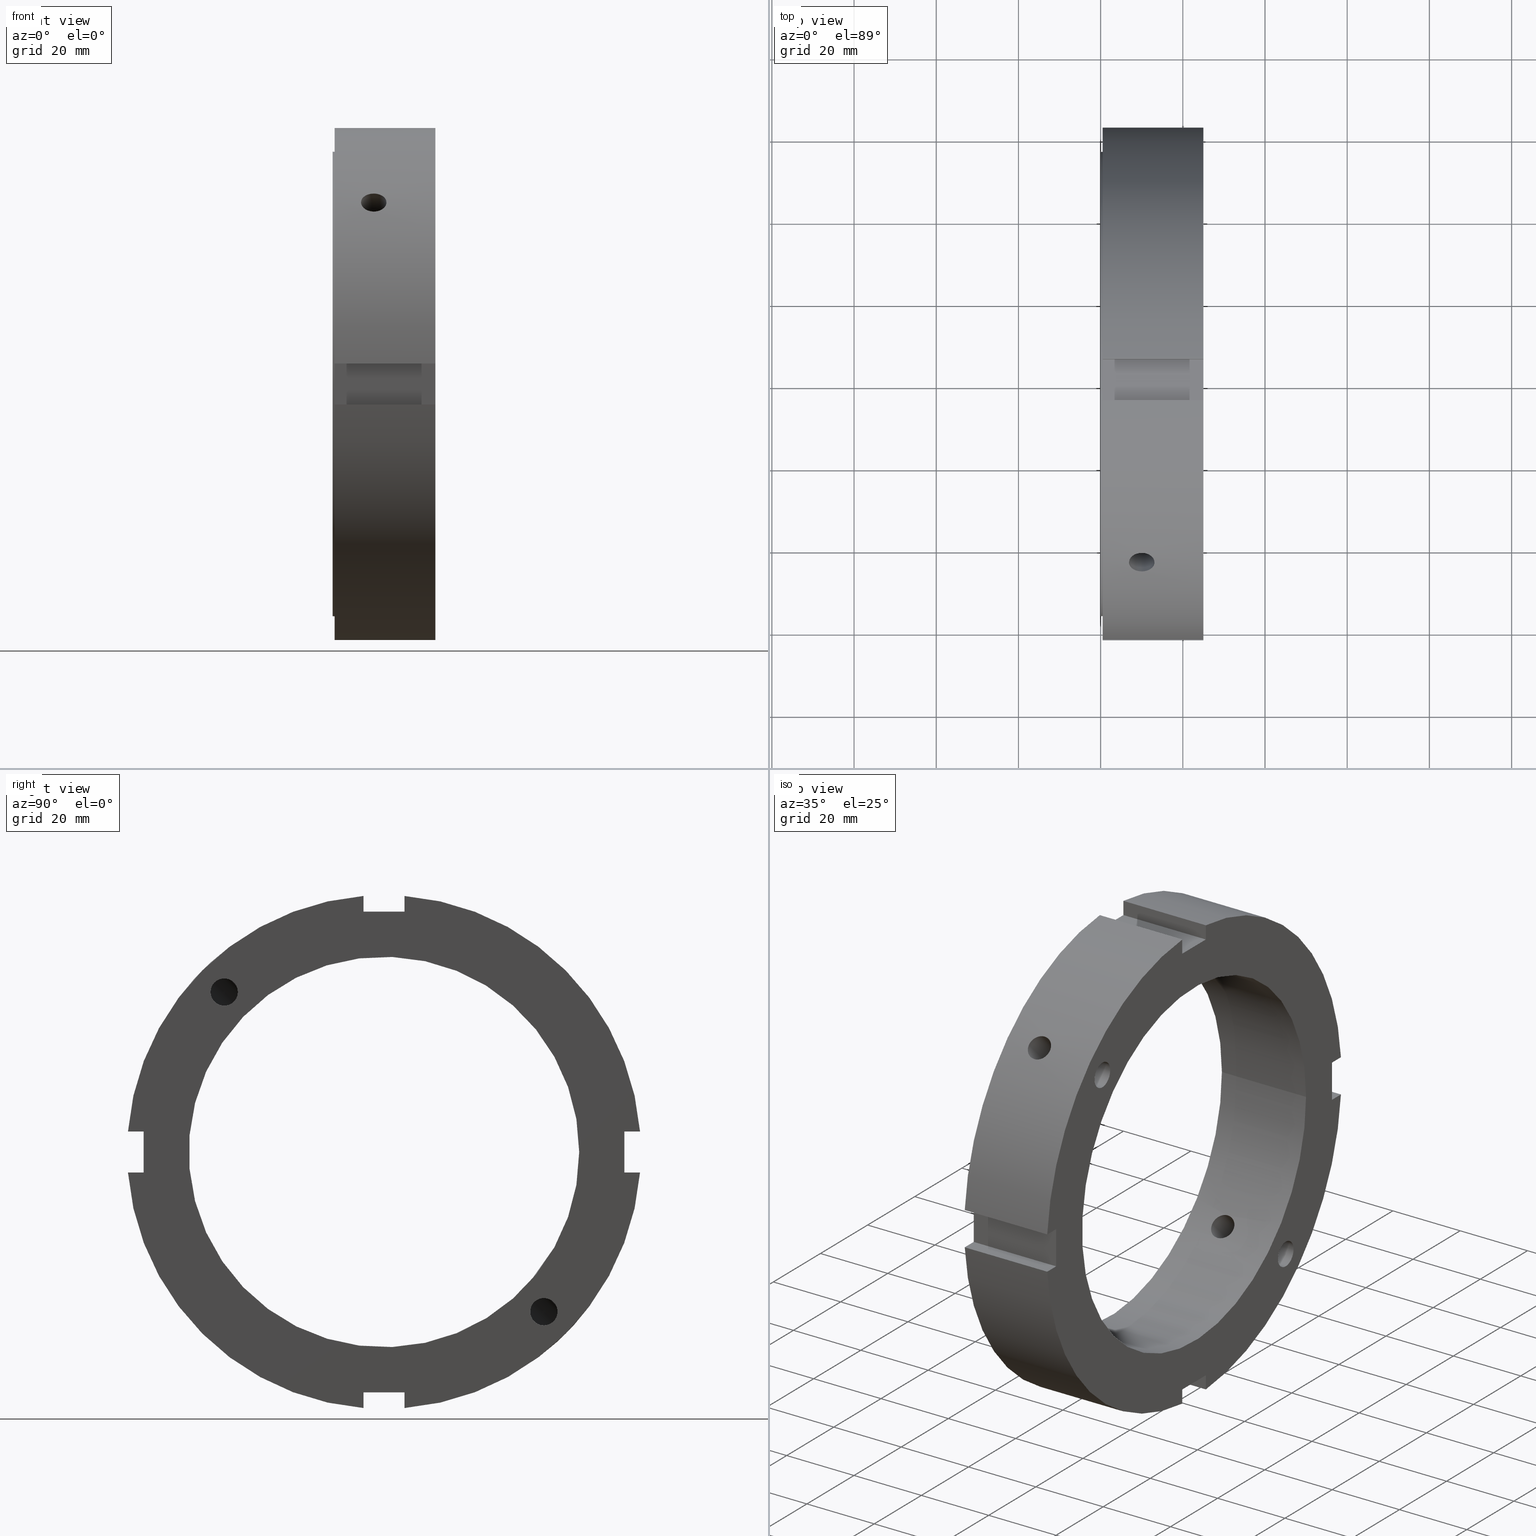
[diagram: canonical four-view strip — front | top / right | iso, engineering-drawing reading convention]
A machine part, canonical four-view strip (front | top / right | iso — engineering-drawing reading convention). The complete STEP part file that produces these views, byte-faithful:
ISO-10303-21;
HEADER;
/****************************************************************
 * Generated by software with PDElib inside                    *
 * PDElib Version v51a, created Wed 11/30/2011                  *
 * ITI Transcendata (http://www.transcendata.com/)              *
 ****************************************************************/
FILE_DESCRIPTION((''),'2;1');
FILE_NAME('C:\\Users\\sugidesign\\Documents\\Fukuda\\3Ddata\\ZMVtype\\FKD ZMV95.stp','2014-02-22T14:40:42',('sugidesign'),(''),'Autodesk Inventor LT ','Autodesk Inventor LT ','');
FILE_SCHEMA(('CONFIG_CONTROL_DESIGN'));
ENDSEC;
DATA;
#5=APPLICATION_CONTEXT('configuration controlled 3D designs of mechanical parts and assemblies');
#6=APPLICATION_PROTOCOL_DEFINITION('International Standard','ap203_configuration_controlled_3d_design_of_mechanical_parts_and_assemblies_mim_lf',2004,#5);
#7=PRODUCT_CONTEXT('',#5,'mechanical');
#8=PRODUCT('FKD ZMV95','FKD ZMV95',$,(#7));
#9=PRODUCT_RELATED_PRODUCT_CATEGORY('part',$,(#8));
#10=PRODUCT_DEFINITION_FORMATION('',$,#8);
#11=PRODUCT_DEFINITION_CONTEXT('part definition',#5,'design');
#12=PRODUCT_DEFINITION('',$,#10,#11);
#18=(NAMED_UNIT(*)PLANE_ANGLE_UNIT()SI_UNIT($,.RADIAN.));
#19=DIMENSIONAL_EXPONENTS(0.0,0.0,0.0,0.0,0.0,0.0,0.0);
#20=PLANE_ANGLE_MEASURE_WITH_UNIT(PLANE_ANGLE_MEASURE(0.0174532925),#18);
#24=(CONVERSION_BASED_UNIT('DEGREE',#20)NAMED_UNIT(#19)PLANE_ANGLE_UNIT());
#28=(NAMED_UNIT(*)SI_UNIT($,.STERADIAN.)SOLID_ANGLE_UNIT());
#32=(LENGTH_UNIT()NAMED_UNIT(*)SI_UNIT(.MILLI.,.METRE.));
#34=UNCERTAINTY_MEASURE_WITH_UNIT(LENGTH_MEASURE(0.01),#32,'DISTANCE_ACCURACY_VALUE','');
#36=(GEOMETRIC_REPRESENTATION_CONTEXT(3)GLOBAL_UNCERTAINTY_ASSIGNED_CONTEXT((#34))GLOBAL_UNIT_ASSIGNED_CONTEXT((#24,#28,#32))REPRESENTATION_CONTEXT('None','None'));
#37=AXIS2_PLACEMENT_3D('',#38,#39,#40);
#38=CARTESIAN_POINT('',(0.0,0.0,0.0));
#39=DIRECTION('',(0.0,0.0,1.0));
#40=DIRECTION('',(1.0,0.0,0.0));
#41=SHAPE_REPRESENTATION('',(#37),#36);
#42=PRODUCT_DEFINITION_SHAPE('','',#12);
#43=SHAPE_DEFINITION_REPRESENTATION(#42,#41);
#49=(NAMED_UNIT(*)PLANE_ANGLE_UNIT()SI_UNIT($,.RADIAN.));
#50=DIMENSIONAL_EXPONENTS(0.0,0.0,0.0,0.0,0.0,0.0,0.0);
#51=PLANE_ANGLE_MEASURE_WITH_UNIT(PLANE_ANGLE_MEASURE(0.0174532925),#49);
#55=(CONVERSION_BASED_UNIT('DEGREE',#51)NAMED_UNIT(#50)PLANE_ANGLE_UNIT());
#59=(NAMED_UNIT(*)SI_UNIT($,.STERADIAN.)SOLID_ANGLE_UNIT());
#63=(LENGTH_UNIT()NAMED_UNIT(*)SI_UNIT(.MILLI.,.METRE.));
#65=UNCERTAINTY_MEASURE_WITH_UNIT(LENGTH_MEASURE(0.000001),#63,'DISTANCE_ACCURACY_VALUE','');
#67=(GEOMETRIC_REPRESENTATION_CONTEXT(3)GLOBAL_UNCERTAINTY_ASSIGNED_CONTEXT((#65))GLOBAL_UNIT_ASSIGNED_CONTEXT((#55,#59,#63))REPRESENTATION_CONTEXT('','3D'));
#68=CARTESIAN_POINT('',(17.499999999999982,-38.890872965260101,38.890872965260129));
#69=DIRECTION('',(-1.0,0.0,0.0));
#70=DIRECTION('',(0.0,-1.0,0.0));
#71=AXIS2_PLACEMENT_3D('',#68,#69,#70);
#72=CYLINDRICAL_SURFACE('',#71,3.3235);
#73=CARTESIAN_POINT('',(24.999999999999982,-42.214372965260111,38.890872965260129));
#74=VERTEX_POINT('',#73);
#75=CARTESIAN_POINT('',(24.999999999999982,-38.890872965260101,38.890872965260129));
#76=DIRECTION('',(-1.0,0.0,0.0));
#77=DIRECTION('',(0.0,-1.0,0.0));
#78=AXIS2_PLACEMENT_3D('',#75,#76,#77);
#79=CIRCLE('',#78,3.3235);
#80=EDGE_CURVE('',#74,#74,#79,.T.);
#81=ORIENTED_EDGE('',*,*,#80,.F.);
#82=EDGE_LOOP('',(#81));
#83=FACE_OUTER_BOUND('',#82,.T.);
#84=CARTESIAN_POINT('',(9.999999999999984,-40.235657786002719,35.851595742646133));
#85=VERTEX_POINT('',#84);
#86=CARTESIAN_POINT('',(9.999999999999981,-35.851595742646076,40.235657786002676));
#87=VERTEX_POINT('',#86);
#88=CARTESIAN_POINT('',(9.999999999999984,-40.235657786002655,35.851595742646097));
#89=CARTESIAN_POINT('',(10.233569825289624,-40.235657786002655,35.851595742646097));
#90=CARTESIAN_POINT('',(10.440966302638051,-40.171007202581315,35.822107512674577));
#91=CARTESIAN_POINT('',(10.836840674384982,-39.980342527220536,35.749357680662669));
#92=CARTESIAN_POINT('',(11.024806661991281,-39.853235569051066,35.706179735944652));
#93=CARTESIAN_POINT('',(11.572531601479472,-39.414585414129725,35.595062928165113));
#94=CARTESIAN_POINT('',(11.911351554404817,-39.047050385549511,35.550109676251736));
#95=CARTESIAN_POINT('',(12.44492654453818,-38.338691728829069,35.596340007120993));
#96=CARTESIAN_POINT('',(12.681418961330902,-37.952779368297811,35.676471298400678));
#97=CARTESIAN_POINT('',(12.927436105658058,-37.39010434633802,35.918494693153875));
#98=CARTESIAN_POINT('',(12.991937069006072,-37.204915016746291,36.018961100741734));
#99=CARTESIAN_POINT('',(13.078237878842893,-36.854662011645026,36.255692342446871));
#100=CARTESIAN_POINT('',(13.099999999999987,-36.689613618648394,36.391993537324851));
#101=CARTESIAN_POINT('',(13.099999999999987,-36.391993537324851,36.689613618648401));
#102=CARTESIAN_POINT('',(13.0782378788429,-36.255692342446871,36.854662011645026));
#103=CARTESIAN_POINT('',(12.991937069006079,-36.018961100741734,37.204915016746284));
#104=CARTESIAN_POINT('',(12.92743610565806,-35.91849469315386,37.39010434633802));
#105=CARTESIAN_POINT('',(12.681418961330911,-35.676471298400656,37.952779368297804));
#106=CARTESIAN_POINT('',(12.444926544538184,-35.596340007120972,38.338691728829062));
#107=CARTESIAN_POINT('',(11.911351554404824,-35.550109676251715,39.047050385549497));
#108=CARTESIAN_POINT('',(11.572531601479479,-35.595062928165085,39.414585414129718));
#109=CARTESIAN_POINT('',(11.024806661991299,-35.706179735944616,39.853235569051051));
#110=CARTESIAN_POINT('',(10.836840674384998,-35.749357680662641,39.980342527220536));
#111=CARTESIAN_POINT('',(10.440966302638063,-35.822107512674549,40.171007202581315));
#112=CARTESIAN_POINT('',(10.233569825289619,-35.851595742646104,40.235657786002733));
#113=CARTESIAN_POINT('',(9.999999999999982,-35.851595742646104,40.235657786002733));
#114=B_SPLINE_CURVE_WITH_KNOTS('',3,(#88,#89,#90,#91,#92,#93,#94,#95,#96,#97,#98,#99,#100,#101,#102,#103,#104,#105,#106,#107,#108,#109,#110,#111,#112,#113),.UNSPECIFIED.,.F.,.U.,(4,2,2,2,2,2,2,2,2,2,2,2,4),(0.0,0.070070947586892,0.140141895173785,0.28028379034757,0.406553296980275,0.469688050296628,0.532822803612981,0.595957556929334,0.659092310245686,0.785361816878391,0.925503712052175,0.995574659639066,1.065645607225958),.UNSPECIFIED.);
#115=EDGE_CURVE('',#85,#87,#114,.T.);
#116=ORIENTED_EDGE('',*,*,#115,.F.);
#117=CARTESIAN_POINT('',(9.999999999999981,-41.930150187874098,37.546088144517505));
#118=VERTEX_POINT('',#117);
#119=CARTESIAN_POINT('',(9.999999999999982,-38.890872965260101,38.890872965260129));
#120=DIRECTION('',(-1.0,0.0,0.0));
#121=DIRECTION('',(0.0,-1.0,0.0));
#122=AXIS2_PLACEMENT_3D('',#119,#120,#121);
#123=CIRCLE('',#122,3.3235);
#124=EDGE_CURVE('',#85,#118,#123,.T.);
#125=ORIENTED_EDGE('',*,*,#124,.T.);
#126=CARTESIAN_POINT('',(9.999999999999984,-37.546088144517554,41.93015018787414));
#127=VERTEX_POINT('',#126);
#128=CARTESIAN_POINT('',(9.999999999999984,-37.546088144517491,41.930150187874126));
#129=CARTESIAN_POINT('',(10.233569825289624,-37.546088144517491,41.930150187874126));
#130=CARTESIAN_POINT('',(10.440966302638067,-37.610738727938923,41.959638417845682));
#131=CARTESIAN_POINT('',(10.836840674384998,-37.801403403299702,42.03238824985759));
#132=CARTESIAN_POINT('',(11.024806661991299,-37.928510361469179,42.075566194575615));
#133=CARTESIAN_POINT('',(11.572531601479481,-38.36716051639052,42.186683002355146));
#134=CARTESIAN_POINT('',(11.911351554404824,-38.734695544970734,42.231636254268523));
#135=CARTESIAN_POINT('',(12.444926544538184,-39.443054201691162,42.185405923399244));
#136=CARTESIAN_POINT('',(12.681418961330902,-39.828966562222433,42.105274632119567));
#137=CARTESIAN_POINT('',(12.927436105658058,-40.39164158418221,41.863251237366363));
#138=CARTESIAN_POINT('',(12.991937069006079,-40.576830913773932,41.762784829778504));
#139=CARTESIAN_POINT('',(13.0782378788429,-40.927083918875198,41.52605358807336));
#140=CARTESIAN_POINT('',(13.099999999999987,-41.092132311871829,41.389752393195387));
#141=CARTESIAN_POINT('',(13.099999999999987,-41.38975239319538,41.092132311871829));
#142=CARTESIAN_POINT('',(13.0782378788429,-41.526053588073353,40.927083918875205));
#143=CARTESIAN_POINT('',(12.991937069006079,-41.762784829778496,40.576830913773946));
#144=CARTESIAN_POINT('',(12.92743610565806,-41.863251237366363,40.39164158418221));
#145=CARTESIAN_POINT('',(12.681418961330904,-42.10527463211956,39.828966562222419));
#146=CARTESIAN_POINT('',(12.444926544538182,-42.185405923399244,39.443054201691155));
#147=CARTESIAN_POINT('',(11.911351554404813,-42.231636254268501,38.73469554497072));
#148=CARTESIAN_POINT('',(11.572531601479488,-42.18668300235511,38.367160516390499));
#149=CARTESIAN_POINT('',(11.024806661991304,-42.075566194575572,37.928510361469151));
#150=CARTESIAN_POINT('',(10.836840674384984,-42.032388249857561,37.801403403299702));
#151=CARTESIAN_POINT('',(10.440966302638049,-41.959638417845653,37.610738727938923));
#152=CARTESIAN_POINT('',(10.233569825289624,-41.930150187874133,37.546088144517576));
#153=CARTESIAN_POINT('',(9.999999999999981,-41.930150187874133,37.546088144517576));
#154=B_SPLINE_CURVE_WITH_KNOTS('',3,(#128,#129,#130,#131,#132,#133,#134,#135,#136,#137,#138,#139,#140,#141,#142,#143,#144,#145,#146,#147,#148,#149,#150,#151,#152,#153),.UNSPECIFIED.,.F.,.U.,(4,2,2,2,2,2,2,2,2,2,2,2,4),(-1.065645607225958,-0.995574659639066,-0.925503712052174,-0.785361816878391,-0.659092310245686,-0.595957556929334,-0.532822803612981,-0.469688050296628,-0.406553296980275,-0.280283790347569,-0.140141895173785,-0.070070947586892,0.0),.UNSPECIFIED.);
#155=EDGE_CURVE('',#127,#118,#154,.T.);
#156=ORIENTED_EDGE('',*,*,#155,.F.);
#157=CARTESIAN_POINT('',(9.999999999999982,-38.890872965260101,38.890872965260129));
#158=DIRECTION('',(-1.0,0.0,0.0));
#159=DIRECTION('',(0.0,-1.0,0.0));
#160=AXIS2_PLACEMENT_3D('',#157,#158,#159);
#161=CIRCLE('',#160,3.3235);
#162=EDGE_CURVE('',#127,#87,#161,.T.);
#163=ORIENTED_EDGE('',*,*,#162,.T.);
#164=EDGE_LOOP('',(#116,#125,#156,#163));
#165=FACE_BOUND('',#164,.T.);
#166=ADVANCED_FACE('',(#83,#165),#72,.F.);
#167=CARTESIAN_POINT('',(9.001519866330934,-38.890872965260101,38.890872965260129));
#168=DIRECTION('',(1.0,0.0,0.0));
#169=DIRECTION('',(0.0,-1.0,0.0));
#170=AXIS2_PLACEMENT_3D('',#167,#168,#169);
#171=CONICAL_SURFACE('',#170,1.66175,59.000000000000007);
#172=CARTESIAN_POINT('',(9.999999999999968,-41.930150187874077,37.546088144517526));
#173=CARTESIAN_POINT('',(9.912387462444665,-41.644161684117478,37.260099640760927));
#174=CARTESIAN_POINT('',(9.863911961712324,-41.356882247391582,36.977046623573024));
#175=CARTESIAN_POINT('',(9.863911961712322,-41.080790777169398,36.70095515335084));
#176=CARTESIAN_POINT('',(9.863911961712322,-40.808945026208278,36.429109402389713));
#177=CARTESIAN_POINT('',(9.911968600355376,-40.523013556882688,36.138951513526138));
#178=CARTESIAN_POINT('',(9.999999999999968,-40.235657786002704,35.851595742646147));
#179=B_SPLINE_CURVE_WITH_KNOTS('',3,(#172,#173,#174,#175,#176,#177,#178),.UNSPECIFIED.,.F.,.U.,(4,3,4),(-0.117135690493122,0.0,0.115334384364818),.UNSPECIFIED.);
#180=EDGE_CURVE('',#118,#85,#179,.T.);
#181=ORIENTED_EDGE('',*,*,#180,.F.);
#182=ORIENTED_EDGE('',*,*,#124,.F.);
#183=EDGE_LOOP('',(#181,#182));
#184=FACE_OUTER_BOUND('',#183,.T.);
#185=ADVANCED_FACE('',(#184),#171,.F.);
#186=CARTESIAN_POINT('',(9.001519866330934,-38.890872965260101,38.890872965260129));
#187=DIRECTION('',(1.0,0.0,0.0));
#188=DIRECTION('',(0.0,-1.0,0.0));
#189=AXIS2_PLACEMENT_3D('',#186,#187,#188);
#190=CONICAL_SURFACE('',#189,1.66175,59.000000000000007);
#191=CARTESIAN_POINT('',(9.999999999999996,-35.851595742646055,40.23565778600269));
#192=CARTESIAN_POINT('',(9.911968600355397,-36.138951513526052,40.523013556882688));
#193=CARTESIAN_POINT('',(9.863911961712317,-36.429109402389678,40.808945026208264));
#194=CARTESIAN_POINT('',(9.863911961712313,-36.977046623573024,41.35688224739161));
#195=CARTESIAN_POINT('',(9.912387462444682,-37.260099640760906,41.644161684117542));
#196=CARTESIAN_POINT('',(9.999999999999996,-37.546088144517526,41.930150187874162));
#197=B_SPLINE_CURVE_WITH_KNOTS('',3,(#191,#192,#193,#194,#195,#196),.UNSPECIFIED.,.F.,.U.,(4,2,4),(1.843478900417881,1.958813284782705,2.075948975275833),.UNSPECIFIED.);
#198=EDGE_CURVE('',#87,#127,#197,.T.);
#199=ORIENTED_EDGE('',*,*,#198,.F.);
#200=ORIENTED_EDGE('',*,*,#162,.F.);
#201=EDGE_LOOP('',(#199,#200));
#202=FACE_OUTER_BOUND('',#201,.T.);
#203=ADVANCED_FACE('',(#202),#190,.F.);
#204=CARTESIAN_POINT('',(9.999999999999986,-125.84712948653218,125.84712948653222));
#205=DIRECTION('',(0.0,-0.707106781186547,0.707106781186548));
#206=DIRECTION('',(1.0,0.0,0.0));
#207=AXIS2_PLACEMENT_3D('',#204,#205,#206);
#208=CYLINDRICAL_SURFACE('',#207,3.100000000000001);
#209=CARTESIAN_POINT('',(9.999999999999986,-46.331809000277147,41.947746956920547));
#210=VERTEX_POINT('',#209);
#211=CARTESIAN_POINT('',(9.999999999999988,-46.331809000277119,41.947746956920568));
#212=CARTESIAN_POINT('',(9.610688527920278,-46.331809000277119,41.947746956920568));
#213=CARTESIAN_POINT('',(9.1954712210817,-46.279624275112916,42.005612180828081));
#214=CARTESIAN_POINT('',(8.431714183417716,-46.066167871219463,42.23959345644473));
#215=CARTESIAN_POINT('',(8.083169039511555,-45.90475094201949,42.41555928311891));
#216=CARTESIAN_POINT('',(7.532768973426228,-45.52921764756482,42.818409226853156));
#217=CARTESIAN_POINT('',(7.294203296904847,-45.290029537403164,43.072138422683125));
#218=CARTESIAN_POINT('',(6.977817042735632,-44.760225204025431,43.62244976483769));
#219=CARTESIAN_POINT('',(6.899999999999988,-44.469458549748751,43.918889098569679));
#220=CARTESIAN_POINT('',(6.899999999999984,-43.918889098569657,44.469458549748779));
#221=CARTESIAN_POINT('',(6.977817042735621,-43.622449764837654,44.760225204025446));
#222=CARTESIAN_POINT('',(7.294203296904821,-43.072138422683096,45.290029537403171));
#223=CARTESIAN_POINT('',(7.53276897342623,-42.818409226853134,45.529217647564835));
#224=CARTESIAN_POINT('',(8.083169039511551,-42.415559283118895,45.904750942019504));
#225=CARTESIAN_POINT('',(8.431714183417702,-42.239593456444702,46.066167871219491));
#226=CARTESIAN_POINT('',(9.195471221081691,-42.005612180828038,46.279624275112937));
#227=CARTESIAN_POINT('',(9.610688527920274,-41.947746956920533,46.331809000277168));
#228=CARTESIAN_POINT('',(10.389311472079701,-41.947746956920533,46.331809000277168));
#229=CARTESIAN_POINT('',(10.80452877891828,-42.005612180828038,46.279624275112937));
#230=CARTESIAN_POINT('',(11.568285816582272,-42.239593456444702,46.066167871219491));
#231=CARTESIAN_POINT('',(11.916830960488426,-42.415559283118895,45.904750942019504));
#232=CARTESIAN_POINT('',(12.467231026573744,-42.818409226853134,45.529217647564835));
#233=CARTESIAN_POINT('',(12.705796703095151,-43.072138422683096,45.290029537403171));
#234=CARTESIAN_POINT('',(13.022182957264352,-43.622449764837654,44.760225204025446));
#235=CARTESIAN_POINT('',(13.099999999999987,-43.918889098569657,44.469458549748779));
#236=CARTESIAN_POINT('',(13.099999999999985,-44.469458549748744,43.918889098569679));
#237=CARTESIAN_POINT('',(13.02218295726435,-44.76022520402541,43.62244976483769));
#238=CARTESIAN_POINT('',(12.705796703095134,-45.290029537403157,43.072138422683118));
#239=CARTESIAN_POINT('',(12.467231026573744,-45.52921764756482,42.818409226853156));
#240=CARTESIAN_POINT('',(11.916830960488419,-45.90475094201949,42.41555928311891));
#241=CARTESIAN_POINT('',(11.568285816582257,-46.066167871219463,42.239593456444723));
#242=CARTESIAN_POINT('',(10.80452877891827,-46.279624275112916,42.005612180828074));
#243=CARTESIAN_POINT('',(10.389311472079694,-46.331809000277133,41.947746956920568));
#244=CARTESIAN_POINT('',(9.999999999999984,-46.331809000277133,41.947746956920568));
#245=B_SPLINE_CURVE_WITH_KNOTS('',3,(#211,#212,#213,#214,#215,#216,#217,#218,#219,#220,#221,#222,#223,#224,#225,#226,#227,#228,#229,#230,#231,#232,#233,#234,#235,#236,#237,#238,#239,#240,#241,#242,#243,#244),.UNSPECIFIED.,.T.,.U.,(4,2,2,2,2,2,2,2,2,2,2,2,2,2,2,2,4),(0.0,0.116793441623913,0.233586883247826,0.350380300980696,0.467173718713565,0.583967136446433,0.700760554179302,0.817553995803216,0.93434743742713,1.051140879051044,1.167934320674958,1.284727738407826,1.401521156140695,1.518314573873564,1.635107991606433,1.751901433230346,1.86869487485426),.UNSPECIFIED.);
#246=EDGE_CURVE('',#210,#210,#245,.T.);
#247=ORIENTED_EDGE('',*,*,#246,.F.);
#248=EDGE_LOOP('',(#247));
#249=FACE_OUTER_BOUND('',#248,.T.);
#250=ORIENTED_EDGE('',*,*,#180,.T.);
#251=ORIENTED_EDGE('',*,*,#115,.T.);
#252=ORIENTED_EDGE('',*,*,#198,.T.);
#253=ORIENTED_EDGE('',*,*,#155,.T.);
#254=EDGE_LOOP('',(#250,#251,#252,#253));
#255=FACE_BOUND('',#254,.T.);
#256=CARTESIAN_POINT('',(9.999999999999986,-35.707997366093899,31.32393532273732));
#257=VERTEX_POINT('',#256);
#258=CARTESIAN_POINT('',(9.999999999999988,-35.707997366093885,31.323935322737334));
#259=CARTESIAN_POINT('',(10.3893617571871,-35.707997366093885,31.323935322737334));
#260=CARTESIAN_POINT('',(10.804600658684809,-35.656700154917154,31.382715828295282));
#261=CARTESIAN_POINT('',(11.568343810667274,-35.446485138978545,31.619959043982444));
#262=CARTESIAN_POINT('',(11.916857461507034,-35.287376493856812,31.798222313056183));
#263=CARTESIAN_POINT('',(12.46720441284447,-34.916200275920815,32.205354217712291));
#264=CARTESIAN_POINT('',(12.705762510545654,-34.679332262130067,32.461359042533218));
#265=CARTESIAN_POINT('',(13.022163364152522,-34.152777854461931,33.014900906377683));
#266=CARTESIAN_POINT('',(13.099999999999987,-33.862892276107488,33.312251936614523));
#267=CARTESIAN_POINT('',(13.099999999999987,-33.312251936614487,33.86289227610753));
#268=CARTESIAN_POINT('',(13.022163364152519,-33.01490090637764,34.152777854461981));
#269=CARTESIAN_POINT('',(12.70576251054565,-32.461359042533168,34.679332262130117));
#270=CARTESIAN_POINT('',(12.46720441284447,-32.205354217712248,34.916200275920858));
#271=CARTESIAN_POINT('',(11.916857461507034,-31.798222313056144,35.28737649385684));
#272=CARTESIAN_POINT('',(11.568343810667274,-31.619959043982405,35.446485138978581));
#273=CARTESIAN_POINT('',(10.80460065868481,-31.382715828295243,35.656700154917189));
#274=CARTESIAN_POINT('',(10.3893617571871,-31.323935322737292,35.707997366093934));
#275=CARTESIAN_POINT('',(9.610638242812877,-31.323935322737292,35.707997366093934));
#276=CARTESIAN_POINT('',(9.195399341315165,-31.382715828295243,35.656700154917189));
#277=CARTESIAN_POINT('',(8.431656189332701,-31.619959043982405,35.446485138978581));
#278=CARTESIAN_POINT('',(8.083142538492943,-31.798222313056144,35.28737649385684));
#279=CARTESIAN_POINT('',(7.532795587155505,-32.205354217712248,34.916200275920858));
#280=CARTESIAN_POINT('',(7.294237489454321,-32.461359042533168,34.67933226213011));
#281=CARTESIAN_POINT('',(6.977836635847455,-33.01490090637764,34.152777854461974));
#282=CARTESIAN_POINT('',(6.899999999999986,-33.31225193661448,33.862892276107523));
#283=CARTESIAN_POINT('',(6.899999999999986,-33.862892276107488,33.312251936614523));
#284=CARTESIAN_POINT('',(6.977836635847455,-34.152777854461931,33.01490090637769));
#285=CARTESIAN_POINT('',(7.294237489454321,-34.679332262130067,32.461359042533218));
#286=CARTESIAN_POINT('',(7.532795587155503,-34.916200275920815,32.205354217712291));
#287=CARTESIAN_POINT('',(8.083142538492941,-35.287376493856812,31.798222313056183));
#288=CARTESIAN_POINT('',(8.431656189332699,-35.446485138978545,31.619959043982444));
#289=CARTESIAN_POINT('',(9.195399341315163,-35.656700154917154,31.382715828295282));
#290=CARTESIAN_POINT('',(9.610638242812877,-35.707997366093892,31.323935322737331));
#291=CARTESIAN_POINT('',(9.999999999999988,-35.707997366093892,31.323935322737331));
#292=B_SPLINE_CURVE_WITH_KNOTS('',3,(#258,#259,#260,#261,#262,#263,#264,#265,#266,#267,#268,#269,#270,#271,#272,#273,#274,#275,#276,#277,#278,#279,#280,#281,#282,#283,#284,#285,#286,#287,#288,#289,#290,#291),.UNSPECIFIED.,.T.,.U.,(4,2,2,2,2,2,2,2,2,2,2,2,2,2,2,2,4),(0.0,0.116808527156133,0.233617054312267,0.350425509727376,0.467233965142486,0.584042420557596,0.700850875972706,0.817659403128839,0.934467930284972,1.051276457441105,1.168084984597239,1.284893440012348,1.401701895427458,1.518510350842568,1.635318806257678,1.752127333413811,1.868935860569944),.UNSPECIFIED.);
#293=EDGE_CURVE('',#257,#257,#292,.T.);
#294=ORIENTED_EDGE('',*,*,#293,.F.);
#295=EDGE_LOOP('',(#294));
#296=FACE_BOUND('',#295,.T.);
#297=ADVANCED_FACE('',(#249,#255,#296),#208,.F.);
#298=CARTESIAN_POINT('',(9.001519866330934,38.890872965260115,-38.890872965260115));
#299=DIRECTION('',(1.0,0.0,0.0));
#300=DIRECTION('',(0.0,0.0,-1.0));
#301=AXIS2_PLACEMENT_3D('',#298,#299,#300);
#302=CONICAL_SURFACE('',#301,1.66175,59.000000000000007);
#303=CARTESIAN_POINT('',(9.999999999999984,35.851595742646126,-40.235657786002726));
#304=VERTEX_POINT('',#303);
#305=CARTESIAN_POINT('',(9.999999999999981,37.546088144517498,-41.930150187874105));
#306=VERTEX_POINT('',#305);
#307=CARTESIAN_POINT('',(9.999999999999979,35.851595742646126,-40.235657786002726));
#308=CARTESIAN_POINT('',(9.911968601461378,36.138951509915891,-40.523013553272492));
#309=CARTESIAN_POINT('',(9.863911961712322,36.429109403772763,-40.808945027591335));
#310=CARTESIAN_POINT('',(9.863911961712322,36.700955153350833,-41.080790777169405));
#311=CARTESIAN_POINT('',(9.863911961712324,36.977046623573017,-41.356882247391589));
#312=CARTESIAN_POINT('',(9.912387462444674,37.260099640760906,-41.644161684117492));
#313=CARTESIAN_POINT('',(9.999999999999975,37.546088144517505,-41.930150187874098));
#314=B_SPLINE_CURVE_WITH_KNOTS('',3,(#307,#308,#309,#310,#311,#312,#313),.UNSPECIFIED.,.F.,.U.,(4,3,4),(-0.115334383778036,0.0,0.117135690493122),.UNSPECIFIED.);
#315=EDGE_CURVE('',#304,#306,#314,.T.);
#316=ORIENTED_EDGE('',*,*,#315,.F.);
#317=CARTESIAN_POINT('',(9.999999999999982,38.890872965260115,-38.890872965260115));
#318=DIRECTION('',(1.0,0.0,0.0));
#319=DIRECTION('',(0.0,0.0,-1.0));
#320=AXIS2_PLACEMENT_3D('',#317,#318,#319);
#321=CIRCLE('',#320,3.3235);
#322=EDGE_CURVE('',#304,#306,#321,.T.);
#323=ORIENTED_EDGE('',*,*,#322,.T.);
#324=EDGE_LOOP('',(#316,#323));
#325=FACE_OUTER_BOUND('',#324,.T.);
#326=ADVANCED_FACE('',(#325),#302,.F.);
#327=CARTESIAN_POINT('',(9.001519866330934,38.890872965260115,-38.890872965260115));
#328=DIRECTION('',(1.0,0.0,0.0));
#329=DIRECTION('',(0.0,0.0,-1.0));
#330=AXIS2_PLACEMENT_3D('',#327,#328,#329);
#331=CONICAL_SURFACE('',#330,1.66175,59.000000000000007);
#332=CARTESIAN_POINT('',(9.999999999999984,41.930150187874133,-37.546088144517562));
#333=VERTEX_POINT('',#332);
#334=CARTESIAN_POINT('',(9.999999999999981,40.235657786002662,-35.851595742646083));
#335=VERTEX_POINT('',#334);
#336=CARTESIAN_POINT('',(9.999999999999984,41.93015018787414,-37.546088144517547));
#337=CARTESIAN_POINT('',(9.912387462444672,41.64416168411752,-37.260099640760927));
#338=CARTESIAN_POINT('',(9.863911961712313,41.356882247391596,-36.977046623573031));
#339=CARTESIAN_POINT('',(9.863911961712315,40.808945026208256,-36.429109402389685));
#340=CARTESIAN_POINT('',(9.911968600355383,40.523013556882688,-36.138951513526095));
#341=CARTESIAN_POINT('',(9.999999999999986,40.235657786002676,-35.851595742646083));
#342=B_SPLINE_CURVE_WITH_KNOTS('',3,(#336,#337,#338,#339,#340,#341),.UNSPECIFIED.,.F.,.U.,(4,2,4),(1.864951332313782,1.982087022806911,2.097421407171735),.UNSPECIFIED.);
#343=EDGE_CURVE('',#333,#335,#342,.T.);
#344=ORIENTED_EDGE('',*,*,#343,.F.);
#345=CARTESIAN_POINT('',(9.999999999999982,38.890872965260115,-38.890872965260115));
#346=DIRECTION('',(1.0,0.0,0.0));
#347=DIRECTION('',(0.0,0.0,-1.0));
#348=AXIS2_PLACEMENT_3D('',#345,#346,#347);
#349=CIRCLE('',#348,3.3235);
#350=EDGE_CURVE('',#333,#335,#349,.T.);
#351=ORIENTED_EDGE('',*,*,#350,.T.);
#352=EDGE_LOOP('',(#344,#351));
#353=FACE_OUTER_BOUND('',#352,.T.);
#354=ADVANCED_FACE('',(#353),#331,.F.);
#355=CARTESIAN_POINT('',(17.499999999999982,38.890872965260115,-38.890872965260115));
#356=DIRECTION('',(1.0,0.0,0.0));
#357=DIRECTION('',(0.0,0.0,-1.0));
#358=AXIS2_PLACEMENT_3D('',#355,#356,#357);
#359=CYLINDRICAL_SURFACE('',#358,3.3235);
#360=CARTESIAN_POINT('',(9.999999999999986,37.546088144517512,-41.930150187874126));
#361=CARTESIAN_POINT('',(10.233569825289624,37.546088144517512,-41.930150187874126));
#362=CARTESIAN_POINT('',(10.440966302638044,37.610738727938916,-41.959638417845667));
#363=CARTESIAN_POINT('',(10.83684067438498,37.801403403299695,-42.032388249857568));
#364=CARTESIAN_POINT('',(11.024806661991299,37.928510361469144,-42.075566194575586));
#365=CARTESIAN_POINT('',(11.572531601479486,38.367160516390484,-42.186683002355124));
#366=CARTESIAN_POINT('',(11.911351554404819,38.734695544970698,-42.231636254268508));
#367=CARTESIAN_POINT('',(12.444926544538184,39.443054201691133,-42.185405923399259));
#368=CARTESIAN_POINT('',(12.681418961330888,39.828966562222384,-42.10527463211956));
#369=CARTESIAN_POINT('',(12.92743610565805,40.391641584182167,-41.863251237366356));
#370=CARTESIAN_POINT('',(12.991937069006067,40.576830913773918,-41.762784829778504));
#371=CARTESIAN_POINT('',(13.078237878842893,40.927083918875191,-41.52605358807336));
#372=CARTESIAN_POINT('',(13.099999999999987,41.092132311871822,-41.389752393195387));
#373=CARTESIAN_POINT('',(13.099999999999987,41.38975239319538,-41.092132311871836));
#374=CARTESIAN_POINT('',(13.0782378788429,41.526053588073353,-40.927083918875205));
#375=CARTESIAN_POINT('',(12.991937069006079,41.762784829778496,-40.576830913773946));
#376=CARTESIAN_POINT('',(12.927436105658058,41.863251237366356,-40.391641584182224));
#377=CARTESIAN_POINT('',(12.681418961330902,42.10527463211956,-39.82896656222244));
#378=CARTESIAN_POINT('',(12.444926544538184,42.185405923399237,-39.443054201691169));
#379=CARTESIAN_POINT('',(11.911351554404824,42.231636254268508,-38.734695544970748));
#380=CARTESIAN_POINT('',(11.572531601479481,42.186683002355139,-38.367160516390527));
#381=CARTESIAN_POINT('',(11.024806661991299,42.0755661945756,-37.928510361469193));
#382=CARTESIAN_POINT('',(10.836840674385002,42.032388249857576,-37.801403403299709));
#383=CARTESIAN_POINT('',(10.440966302638069,41.959638417845674,-37.61073872793893));
#384=CARTESIAN_POINT('',(10.233569825289628,41.93015018787414,-37.546088144517547));
#385=CARTESIAN_POINT('',(9.999999999999988,41.93015018787414,-37.546088144517547));
#386=B_SPLINE_CURVE_WITH_KNOTS('',3,(#360,#361,#362,#363,#364,#365,#366,#367,#368,#369,#370,#371,#372,#373,#374,#375,#376,#377,#378,#379,#380,#381,#382,#383,#384,#385),.UNSPECIFIED.,.F.,.U.,(4,2,2,2,2,2,2,2,2,2,2,2,4),(0.0,0.070070947586892,0.140141895173784,0.280283790347568,0.406553296980274,0.469688050296628,0.532822803612981,0.595957556929334,0.659092310245686,0.785361816878391,0.925503712052174,0.995574659639066,1.065645607225958),.UNSPECIFIED.);
#387=EDGE_CURVE('',#306,#333,#386,.T.);
#388=ORIENTED_EDGE('',*,*,#387,.F.);
#389=ORIENTED_EDGE('',*,*,#322,.F.);
#390=CARTESIAN_POINT('',(9.999999999999986,40.235657786002704,-35.851595742646097));
#391=CARTESIAN_POINT('',(10.233569825289626,40.235657786002704,-35.851595742646097));
#392=CARTESIAN_POINT('',(10.440966302638053,40.171007202581279,-35.822107512674549));
#393=CARTESIAN_POINT('',(10.836840674384987,39.9803425272205,-35.749357680662641));
#394=CARTESIAN_POINT('',(11.024806661991299,39.853235569051044,-35.706179735944623));
#395=CARTESIAN_POINT('',(11.572531601479479,39.414585414129711,-35.595062928165092));
#396=CARTESIAN_POINT('',(11.911351554404824,39.047050385549483,-35.550109676251722));
#397=CARTESIAN_POINT('',(12.444926544538184,38.338691728829055,-35.596340007120986));
#398=CARTESIAN_POINT('',(12.681418961330911,37.952779368297797,-35.676471298400671));
#399=CARTESIAN_POINT('',(12.92743610565806,37.390104346338013,-35.918494693153875));
#400=CARTESIAN_POINT('',(12.991937069006079,37.204915016746277,-36.018961100741748));
#401=CARTESIAN_POINT('',(13.0782378788429,36.854662011645011,-36.255692342446878));
#402=CARTESIAN_POINT('',(13.099999999999987,36.689613618648394,-36.391993537324858));
#403=CARTESIAN_POINT('',(13.099999999999987,36.391993537324844,-36.689613618648409));
#404=CARTESIAN_POINT('',(13.078237878842895,36.255692342446864,-36.854662011645033));
#405=CARTESIAN_POINT('',(12.99193706900607,36.018961100741727,-37.204915016746305));
#406=CARTESIAN_POINT('',(12.927436105658048,35.91849469315386,-37.390104346338042));
#407=CARTESIAN_POINT('',(12.681418961330888,35.676471298400656,-37.952779368297833));
#408=CARTESIAN_POINT('',(12.444926544538184,35.596340007120979,-38.338691728829112));
#409=CARTESIAN_POINT('',(11.911351554404819,35.550109676251729,-39.047050385549547));
#410=CARTESIAN_POINT('',(11.572531601479451,35.595062928165106,-39.414585414129746));
#411=CARTESIAN_POINT('',(11.024806661991269,35.706179735944644,-39.85323556905108));
#412=CARTESIAN_POINT('',(10.836840674384957,35.749357680662655,-39.980342527220543));
#413=CARTESIAN_POINT('',(10.440966302638028,35.822107512674563,-40.171007202581315));
#414=CARTESIAN_POINT('',(10.233569825289624,35.851595742646111,-40.235657786002719));
#415=CARTESIAN_POINT('',(9.999999999999986,35.851595742646111,-40.235657786002719));
#416=B_SPLINE_CURVE_WITH_KNOTS('',3,(#390,#391,#392,#393,#394,#395,#396,#397,#398,#399,#400,#401,#402,#403,#404,#405,#406,#407,#408,#409,#410,#411,#412,#413,#414,#415),.UNSPECIFIED.,.F.,.U.,(4,2,2,2,2,2,2,2,2,2,2,2,4),(-1.065645607225958,-0.995574659639066,-0.925503712052175,-0.785361816878391,-0.659092310245686,-0.595957556929334,-0.532822803612981,-0.469688050296628,-0.406553296980274,-0.280283790347567,-0.140141895173784,-0.070070947586892,0.0),.UNSPECIFIED.);
#417=EDGE_CURVE('',#335,#304,#416,.T.);
#418=ORIENTED_EDGE('',*,*,#417,.F.);
#419=ORIENTED_EDGE('',*,*,#350,.F.);
#420=EDGE_LOOP('',(#388,#389,#418,#419));
#421=FACE_OUTER_BOUND('',#420,.T.);
#422=CARTESIAN_POINT('',(24.999999999999982,38.890872965260115,-42.214372965260118));
#423=VERTEX_POINT('',#422);
#424=CARTESIAN_POINT('',(24.999999999999982,38.890872965260115,-38.890872965260115));
#425=DIRECTION('',(-1.0,0.0,0.0));
#426=DIRECTION('',(0.0,0.0,-1.0));
#427=AXIS2_PLACEMENT_3D('',#424,#425,#426);
#428=CIRCLE('',#427,3.3235);
#429=EDGE_CURVE('',#423,#423,#428,.T.);
#430=ORIENTED_EDGE('',*,*,#429,.F.);
#431=EDGE_LOOP('',(#430));
#432=FACE_BOUND('',#431,.T.);
#433=ADVANCED_FACE('',(#421,#432),#359,.F.);
#434=CARTESIAN_POINT('',(9.999999999999986,125.8471294865322,-125.84712948653221));
#435=DIRECTION('',(0.0,-0.707106781186547,0.707106781186548));
#436=DIRECTION('',(1.0,0.0,0.0));
#437=AXIS2_PLACEMENT_3D('',#434,#435,#436);
#438=CYLINDRICAL_SURFACE('',#437,3.100000000000001);
#439=CARTESIAN_POINT('',(9.999999999999986,41.94774695692054,-46.331809000277161));
#440=VERTEX_POINT('',#439);
#441=CARTESIAN_POINT('',(9.999999999999986,41.947746956920547,-46.331809000277147));
#442=CARTESIAN_POINT('',(10.389311472079699,41.947746956920547,-46.331809000277147));
#443=CARTESIAN_POINT('',(10.804528778918279,42.005612180828052,-46.279624275112923));
#444=CARTESIAN_POINT('',(11.568285816582263,42.239593456444702,-46.06616787121947));
#445=CARTESIAN_POINT('',(11.916830960488426,42.415559283118895,-45.904750942019504));
#446=CARTESIAN_POINT('',(12.467231026573746,42.818409226853156,-45.529217647564835));
#447=CARTESIAN_POINT('',(12.70579670309515,43.072138422683111,-45.290029537403164));
#448=CARTESIAN_POINT('',(13.022182957264352,43.622449764837668,-44.760225204025431));
#449=CARTESIAN_POINT('',(13.099999999999987,43.918889098569672,-44.469458549748765));
#450=CARTESIAN_POINT('',(13.099999999999987,44.469458549748772,-43.918889098569664));
#451=CARTESIAN_POINT('',(13.022182957264343,44.760225204025438,-43.622449764837668));
#452=CARTESIAN_POINT('',(12.705796703095125,45.290029537403178,-43.072138422683111));
#453=CARTESIAN_POINT('',(12.467231026573744,45.529217647564835,-42.818409226853149));
#454=CARTESIAN_POINT('',(11.916830960488415,45.904750942019497,-42.415559283118903));
#455=CARTESIAN_POINT('',(11.568285816582256,46.066167871219477,-42.239593456444709));
#456=CARTESIAN_POINT('',(10.80452877891827,46.27962427511293,-42.005612180828066));
#457=CARTESIAN_POINT('',(10.389311472079699,46.331809000277161,-41.94774695692054));
#458=CARTESIAN_POINT('',(9.610688527920274,46.331809000277161,-41.94774695692054));
#459=CARTESIAN_POINT('',(9.195471221081702,46.27962427511293,-42.005612180828066));
#460=CARTESIAN_POINT('',(8.431714183417716,46.066167871219477,-42.239593456444709));
#461=CARTESIAN_POINT('',(8.083169039511557,45.904750942019497,-42.415559283118903));
#462=CARTESIAN_POINT('',(7.532768973426229,45.529217647564835,-42.818409226853149));
#463=CARTESIAN_POINT('',(7.294203296904847,45.290029537403178,-43.072138422683111));
#464=CARTESIAN_POINT('',(6.97781704273563,44.760225204025438,-43.622449764837668));
#465=CARTESIAN_POINT('',(6.899999999999988,44.469458549748772,-43.918889098569664));
#466=CARTESIAN_POINT('',(6.899999999999984,43.918889098569672,-44.469458549748765));
#467=CARTESIAN_POINT('',(6.977817042735622,43.622449764837668,-44.760225204025431));
#468=CARTESIAN_POINT('',(7.294203296904823,43.072138422683111,-45.290029537403164));
#469=CARTESIAN_POINT('',(7.532768973426228,42.818409226853156,-45.529217647564835));
#470=CARTESIAN_POINT('',(8.083169039511549,42.415559283118895,-45.904750942019504));
#471=CARTESIAN_POINT('',(8.431714183417711,42.239593456444702,-46.06616787121947));
#472=CARTESIAN_POINT('',(9.195471221081697,42.005612180828052,-46.279624275112923));
#473=CARTESIAN_POINT('',(9.610688527920278,41.947746956920547,-46.331809000277147));
#474=CARTESIAN_POINT('',(9.999999999999989,41.947746956920547,-46.331809000277147));
#475=B_SPLINE_CURVE_WITH_KNOTS('',3,(#441,#442,#443,#444,#445,#446,#447,#448,#449,#450,#451,#452,#453,#454,#455,#456,#457,#458,#459,#460,#461,#462,#463,#464,#465,#466,#467,#468,#469,#470,#471,#472,#473,#474),.UNSPECIFIED.,.T.,.U.,(4,2,2,2,2,2,2,2,2,2,2,2,2,2,2,2,4),(0.0,0.116793441623914,0.233586883247827,0.350380300980696,0.467173718713565,0.583967136446434,0.700760554179303,0.817553995803216,0.93434743742713,1.051140879051044,1.167934320674957,1.284727738407826,1.401521156140694,1.518314573873564,1.635107991606433,1.751901433230346,1.86869487485426),.UNSPECIFIED.);
#476=EDGE_CURVE('',#440,#440,#475,.T.);
#477=ORIENTED_EDGE('',*,*,#476,.F.);
#478=EDGE_LOOP('',(#477));
#479=FACE_OUTER_BOUND('',#478,.T.);
#480=ORIENTED_EDGE('',*,*,#315,.T.);
#481=ORIENTED_EDGE('',*,*,#387,.T.);
#482=ORIENTED_EDGE('',*,*,#343,.T.);
#483=ORIENTED_EDGE('',*,*,#417,.T.);
#484=EDGE_LOOP('',(#480,#481,#482,#483));
#485=FACE_BOUND('',#484,.T.);
#486=CARTESIAN_POINT('',(9.999999999999986,31.323935322737313,-35.707997366093906));
#487=VERTEX_POINT('',#486);
#488=CARTESIAN_POINT('',(9.999999999999986,31.323935322737309,-35.707997366093906));
#489=CARTESIAN_POINT('',(9.610638242812877,31.323935322737309,-35.707997366093906));
#490=CARTESIAN_POINT('',(9.195399341315165,31.382715828295261,-35.656700154917175));
#491=CARTESIAN_POINT('',(8.431656189332701,31.619959043982423,-35.446485138978559));
#492=CARTESIAN_POINT('',(8.083142538492943,31.798222313056161,-35.287376493856826));
#493=CARTESIAN_POINT('',(7.532795587155505,32.205354217712269,-34.916200275920843));
#494=CARTESIAN_POINT('',(7.294237489454321,32.461359042533189,-34.679332262130089));
#495=CARTESIAN_POINT('',(6.977836635847455,33.014900906377655,-34.152777854461952));
#496=CARTESIAN_POINT('',(6.899999999999986,33.312251936614501,-33.862892276107516));
#497=CARTESIAN_POINT('',(6.899999999999986,33.862892276107502,-33.312251936614501));
#498=CARTESIAN_POINT('',(6.977836635847452,34.152777854461945,-33.014900906377662));
#499=CARTESIAN_POINT('',(7.294237489454321,34.679332262130089,-32.461359042533196));
#500=CARTESIAN_POINT('',(7.532795587155503,34.916200275920836,-32.205354217712269));
#501=CARTESIAN_POINT('',(8.08314253849294,35.287376493856826,-31.798222313056165));
#502=CARTESIAN_POINT('',(8.431656189332699,35.446485138978559,-31.619959043982423));
#503=CARTESIAN_POINT('',(9.195399341315163,35.656700154917168,-31.382715828295261));
#504=CARTESIAN_POINT('',(9.610638242812875,35.707997366093906,-31.323935322737313));
#505=CARTESIAN_POINT('',(10.3893617571871,35.707997366093906,-31.323935322737313));
#506=CARTESIAN_POINT('',(10.804600658684809,35.656700154917168,-31.382715828295261));
#507=CARTESIAN_POINT('',(11.568343810667274,35.446485138978559,-31.619959043982423));
#508=CARTESIAN_POINT('',(11.916857461507034,35.287376493856826,-31.798222313056165));
#509=CARTESIAN_POINT('',(12.46720441284447,34.916200275920836,-32.205354217712269));
#510=CARTESIAN_POINT('',(12.705762510545654,34.679332262130089,-32.461359042533203));
#511=CARTESIAN_POINT('',(13.022163364152522,34.152777854461945,-33.014900906377669));
#512=CARTESIAN_POINT('',(13.099999999999987,33.862892276107502,-33.312251936614501));
#513=CARTESIAN_POINT('',(13.099999999999987,33.312251936614501,-33.862892276107516));
#514=CARTESIAN_POINT('',(13.022163364152522,33.014900906377648,-34.152777854461952));
#515=CARTESIAN_POINT('',(12.705762510545654,32.461359042533182,-34.679332262130089));
#516=CARTESIAN_POINT('',(12.467204412844469,32.205354217712269,-34.916200275920843));
#517=CARTESIAN_POINT('',(11.916857461507032,31.798222313056161,-35.287376493856826));
#518=CARTESIAN_POINT('',(11.568343810667272,31.619959043982423,-35.446485138978559));
#519=CARTESIAN_POINT('',(10.80460065868481,31.382715828295261,-35.656700154917175));
#520=CARTESIAN_POINT('',(10.3893617571871,31.323935322737309,-35.707997366093906));
#521=CARTESIAN_POINT('',(9.999999999999986,31.323935322737309,-35.707997366093906));
#522=B_SPLINE_CURVE_WITH_KNOTS('',3,(#488,#489,#490,#491,#492,#493,#494,#495,#496,#497,#498,#499,#500,#501,#502,#503,#504,#505,#506,#507,#508,#509,#510,#511,#512,#513,#514,#515,#516,#517,#518,#519,#520,#521),.UNSPECIFIED.,.T.,.U.,(4,2,2,2,2,2,2,2,2,2,2,2,2,2,2,2,4),(0.0,0.116808527156133,0.233617054312266,0.350425509727376,0.467233965142486,0.584042420557596,0.700850875972705,0.817659403128839,0.934467930284972,1.051276457441105,1.168084984597239,1.284893440012348,1.401701895427458,1.518510350842568,1.635318806257678,1.752127333413811,1.868935860569944),.UNSPECIFIED.);
#523=EDGE_CURVE('',#487,#487,#522,.T.);
#524=ORIENTED_EDGE('',*,*,#523,.F.);
#525=EDGE_LOOP('',(#524));
#526=FACE_BOUND('',#525,.T.);
#527=ADVANCED_FACE('',(#479,#485,#526),#438,.F.);
#528=CARTESIAN_POINT('',(24.999999999999982,-5.000000000000007,-58.5));
#529=DIRECTION('',(0.0,-1.0,0.0));
#530=DIRECTION('',(-1.0,0.0,0.0));
#531=AXIS2_PLACEMENT_3D('',#528,#529,#530);
#532=PLANE('',#531);
#533=CARTESIAN_POINT('',(0.499999999999985,-5.000000000000007,-58.5));
#534=VERTEX_POINT('',#533);
#535=CARTESIAN_POINT('',(0.499999999999985,-5.000000000000008,-62.299678971885555));
#536=VERTEX_POINT('',#535);
#537=CARTESIAN_POINT('',(0.499999999999985,-5.00000000000001,-58.5));
#538=DIRECTION('',(0.0,0.0,-1.0));
#539=VECTOR('',#538,3.799678971885555);
#540=LINE('',#537,#539);
#541=EDGE_CURVE('',#534,#536,#540,.T.);
#542=ORIENTED_EDGE('',*,*,#541,.F.);
#543=CARTESIAN_POINT('',(24.999999999999982,-5.000000000000007,-58.5));
#544=VERTEX_POINT('',#543);
#545=CARTESIAN_POINT('',(24.999999999999982,-5.000000000000007,-58.5));
#546=DIRECTION('',(-1.0,0.0,0.0));
#547=VECTOR('',#546,24.499999999999996);
#548=LINE('',#545,#547);
#549=EDGE_CURVE('',#544,#534,#548,.T.);
#550=ORIENTED_EDGE('',*,*,#549,.F.);
#551=CARTESIAN_POINT('',(24.999999999999982,-5.000000000000008,-62.299678971885555));
#552=VERTEX_POINT('',#551);
#553=CARTESIAN_POINT('',(24.999999999999982,-5.000000000000011,-62.299678971885555));
#554=DIRECTION('',(0.0,0.0,1.0));
#555=VECTOR('',#554,3.799678971885555);
#556=LINE('',#553,#555);
#557=EDGE_CURVE('',#552,#544,#556,.T.);
#558=ORIENTED_EDGE('',*,*,#557,.F.);
#559=CARTESIAN_POINT('',(0.499999999999986,-5.000000000000007,-62.299678971885555));
#560=DIRECTION('',(1.0,0.0,0.0));
#561=VECTOR('',#560,24.499999999999996);
#562=LINE('',#559,#561);
#563=EDGE_CURVE('',#536,#552,#562,.T.);
#564=ORIENTED_EDGE('',*,*,#563,.F.);
#565=EDGE_LOOP('',(#542,#550,#558,#564));
#566=FACE_OUTER_BOUND('',#565,.T.);
#567=ADVANCED_FACE('',(#566),#532,.F.);
#568=CARTESIAN_POINT('',(24.999999999999982,4.999999999999985,-62.5));
#569=DIRECTION('',(0.0,1.0,0.0));
#570=DIRECTION('',(1.0,0.0,0.0));
#571=AXIS2_PLACEMENT_3D('',#568,#569,#570);
#572=PLANE('',#571);
#573=CARTESIAN_POINT('',(0.499999999999985,4.999999999999985,-62.299678971885555));
#574=VERTEX_POINT('',#573);
#575=CARTESIAN_POINT('',(0.499999999999985,4.999999999999986,-58.5));
#576=VERTEX_POINT('',#575);
#577=CARTESIAN_POINT('',(0.499999999999985,4.999999999999981,-62.299678971885555));
#578=DIRECTION('',(0.0,0.0,1.0));
#579=VECTOR('',#578,3.799678971885555);
#580=LINE('',#577,#579);
#581=EDGE_CURVE('',#574,#576,#580,.T.);
#582=ORIENTED_EDGE('',*,*,#581,.F.);
#583=CARTESIAN_POINT('',(24.999999999999982,4.999999999999985,-62.299678971885555));
#584=VERTEX_POINT('',#583);
#585=CARTESIAN_POINT('',(24.999999999999982,4.999999999999985,-62.299678971885555));
#586=DIRECTION('',(-1.0,0.0,0.0));
#587=VECTOR('',#586,24.499999999999996);
#588=LINE('',#585,#587);
#589=EDGE_CURVE('',#584,#574,#588,.T.);
#590=ORIENTED_EDGE('',*,*,#589,.F.);
#591=CARTESIAN_POINT('',(24.999999999999982,4.999999999999986,-58.5));
#592=VERTEX_POINT('',#591);
#593=CARTESIAN_POINT('',(24.999999999999982,4.999999999999981,-58.5));
#594=DIRECTION('',(0.0,0.0,-1.0));
#595=VECTOR('',#594,3.799678971885555);
#596=LINE('',#593,#595);
#597=EDGE_CURVE('',#592,#584,#596,.T.);
#598=ORIENTED_EDGE('',*,*,#597,.F.);
#599=CARTESIAN_POINT('',(24.999999999999982,4.999999999999986,-58.5));
#600=DIRECTION('',(-1.0,0.0,0.0));
#601=VECTOR('',#600,24.499999999999996);
#602=LINE('',#599,#601);
#603=EDGE_CURVE('',#592,#576,#602,.T.);
#604=ORIENTED_EDGE('',*,*,#603,.T.);
#605=EDGE_LOOP('',(#582,#590,#598,#604));
#606=FACE_OUTER_BOUND('',#605,.T.);
#607=ADVANCED_FACE('',(#606),#572,.F.);
#608=CARTESIAN_POINT('',(24.999999999999982,4.999999999999986,-58.5));
#609=DIRECTION('',(0.0,0.0,1.0));
#610=DIRECTION('',(0.0,-1.0,0.0));
#611=AXIS2_PLACEMENT_3D('',#608,#609,#610);
#612=PLANE('',#611);
#613=CARTESIAN_POINT('',(0.499999999999985,4.999999999999986,-58.499999999999993));
#614=DIRECTION('',(0.0,-1.0,0.0));
#615=VECTOR('',#614,10.0);
#616=LINE('',#613,#615);
#617=EDGE_CURVE('',#576,#534,#616,.T.);
#618=ORIENTED_EDGE('',*,*,#617,.F.);
#619=ORIENTED_EDGE('',*,*,#603,.F.);
#620=CARTESIAN_POINT('',(24.999999999999982,-5.000000000000007,-58.499999999999993));
#621=DIRECTION('',(0.0,1.0,0.0));
#622=VECTOR('',#621,9.999999999999993);
#623=LINE('',#620,#622);
#624=EDGE_CURVE('',#544,#592,#623,.T.);
#625=ORIENTED_EDGE('',*,*,#624,.F.);
#626=ORIENTED_EDGE('',*,*,#549,.T.);
#627=EDGE_LOOP('',(#618,#619,#625,#626));
#628=FACE_OUTER_BOUND('',#627,.T.);
#629=ADVANCED_FACE('',(#628),#612,.F.);
#630=CARTESIAN_POINT('',(24.999999999999982,-58.5,5.000000000000004));
#631=DIRECTION('',(0.0,0.0,1.0));
#632=DIRECTION('',(-1.0,0.0,0.0));
#633=AXIS2_PLACEMENT_3D('',#630,#631,#632);
#634=PLANE('',#633);
#635=CARTESIAN_POINT('',(0.499999999999985,-58.5,5.000000000000004));
#636=VERTEX_POINT('',#635);
#637=CARTESIAN_POINT('',(0.499999999999985,-62.299678971885555,5.000000000000004));
#638=VERTEX_POINT('',#637);
#639=CARTESIAN_POINT('',(0.499999999999985,-58.5,5.000000000000004));
#640=DIRECTION('',(0.0,-1.0,0.0));
#641=VECTOR('',#640,3.799678971885562);
#642=LINE('',#639,#641);
#643=EDGE_CURVE('',#636,#638,#642,.T.);
#644=ORIENTED_EDGE('',*,*,#643,.F.);
#645=CARTESIAN_POINT('',(24.999999999999982,-58.5,5.000000000000004));
#646=VERTEX_POINT('',#645);
#647=CARTESIAN_POINT('',(24.999999999999982,-58.5,5.000000000000004));
#648=DIRECTION('',(-1.0,0.0,0.0));
#649=VECTOR('',#648,24.499999999999996);
#650=LINE('',#647,#649);
#651=EDGE_CURVE('',#646,#636,#650,.T.);
#652=ORIENTED_EDGE('',*,*,#651,.F.);
#653=CARTESIAN_POINT('',(24.999999999999982,-62.299678971885555,5.000000000000004));
#654=VERTEX_POINT('',#653);
#655=CARTESIAN_POINT('',(24.999999999999982,-62.299678971885555,5.000000000000004));
#656=DIRECTION('',(0.0,1.0,0.0));
#657=VECTOR('',#656,3.799678971885555);
#658=LINE('',#655,#657);
#659=EDGE_CURVE('',#654,#646,#658,.T.);
#660=ORIENTED_EDGE('',*,*,#659,.F.);
#661=CARTESIAN_POINT('',(0.499999999999986,-62.299678971885555,5.000000000000004));
#662=DIRECTION('',(1.0,0.0,0.0));
#663=VECTOR('',#662,24.499999999999996);
#664=LINE('',#661,#663);
#665=EDGE_CURVE('',#638,#654,#664,.T.);
#666=ORIENTED_EDGE('',*,*,#665,.F.);
#667=EDGE_LOOP('',(#644,#652,#660,#666));
#668=FACE_OUTER_BOUND('',#667,.T.);
#669=ADVANCED_FACE('',(#668),#634,.F.);
#670=CARTESIAN_POINT('',(24.999999999999982,-62.5,-4.999999999999989));
#671=DIRECTION('',(0.0,0.0,-1.0));
#672=DIRECTION('',(1.0,0.0,0.0));
#673=AXIS2_PLACEMENT_3D('',#670,#671,#672);
#674=PLANE('',#673);
#675=CARTESIAN_POINT('',(0.499999999999985,-62.299678971885555,-4.999999999999989));
#676=VERTEX_POINT('',#675);
#677=CARTESIAN_POINT('',(0.499999999999985,-58.5,-4.99999999999999));
#678=VERTEX_POINT('',#677);
#679=CARTESIAN_POINT('',(0.499999999999985,-62.299678971885555,-4.999999999999989));
#680=DIRECTION('',(0.0,1.0,0.0));
#681=VECTOR('',#680,3.799678971885562);
#682=LINE('',#679,#681);
#683=EDGE_CURVE('',#676,#678,#682,.T.);
#684=ORIENTED_EDGE('',*,*,#683,.F.);
#685=CARTESIAN_POINT('',(24.999999999999982,-62.299678971885555,-4.999999999999989));
#686=VERTEX_POINT('',#685);
#687=CARTESIAN_POINT('',(24.999999999999982,-62.299678971885555,-4.999999999999989));
#688=DIRECTION('',(-1.0,0.0,0.0));
#689=VECTOR('',#688,24.499999999999996);
#690=LINE('',#687,#689);
#691=EDGE_CURVE('',#686,#676,#690,.T.);
#692=ORIENTED_EDGE('',*,*,#691,.F.);
#693=CARTESIAN_POINT('',(24.999999999999982,-58.5,-4.99999999999999));
#694=VERTEX_POINT('',#693);
#695=CARTESIAN_POINT('',(24.999999999999982,-58.5,-4.999999999999989));
#696=DIRECTION('',(0.0,-1.0,0.0));
#697=VECTOR('',#696,3.799678971885555);
#698=LINE('',#695,#697);
#699=EDGE_CURVE('',#694,#686,#698,.T.);
#700=ORIENTED_EDGE('',*,*,#699,.F.);
#701=CARTESIAN_POINT('',(24.999999999999982,-58.5,-4.99999999999999));
#702=DIRECTION('',(-1.0,0.0,0.0));
#703=VECTOR('',#702,24.499999999999996);
#704=LINE('',#701,#703);
#705=EDGE_CURVE('',#694,#678,#704,.T.);
#706=ORIENTED_EDGE('',*,*,#705,.T.);
#707=EDGE_LOOP('',(#684,#692,#700,#706));
#708=FACE_OUTER_BOUND('',#707,.T.);
#709=ADVANCED_FACE('',(#708),#674,.F.);
#710=CARTESIAN_POINT('',(24.999999999999982,-58.5,-4.99999999999999));
#711=DIRECTION('',(0.0,1.0,0.0));
#712=DIRECTION('',(0.0,0.0,1.0));
#713=AXIS2_PLACEMENT_3D('',#710,#711,#712);
#714=PLANE('',#713);
#715=CARTESIAN_POINT('',(0.499999999999985,-58.5,-4.999999999999989));
#716=DIRECTION('',(0.0,0.0,1.0));
#717=VECTOR('',#716,9.999999999999993);
#718=LINE('',#715,#717);
#719=EDGE_CURVE('',#678,#636,#718,.T.);
#720=ORIENTED_EDGE('',*,*,#719,.F.);
#721=ORIENTED_EDGE('',*,*,#705,.F.);
#722=CARTESIAN_POINT('',(24.999999999999982,-58.5,5.000000000000004));
#723=DIRECTION('',(0.0,0.0,-1.0));
#724=VECTOR('',#723,9.999999999999993);
#725=LINE('',#722,#724);
#726=EDGE_CURVE('',#646,#694,#725,.T.);
#727=ORIENTED_EDGE('',*,*,#726,.F.);
#728=ORIENTED_EDGE('',*,*,#651,.T.);
#729=EDGE_LOOP('',(#720,#721,#727,#728));
#730=FACE_OUTER_BOUND('',#729,.T.);
#731=ADVANCED_FACE('',(#730),#714,.F.);
#732=CARTESIAN_POINT('',(24.999999999999982,5.0,58.5));
#733=DIRECTION('',(0.0,1.0,0.0));
#734=DIRECTION('',(-1.0,0.0,0.0));
#735=AXIS2_PLACEMENT_3D('',#732,#733,#734);
#736=PLANE('',#735);
#737=CARTESIAN_POINT('',(0.499999999999985,5.0,58.5));
#738=VERTEX_POINT('',#737);
#739=CARTESIAN_POINT('',(0.499999999999985,5.0,62.299678971885555));
#740=VERTEX_POINT('',#739);
#741=CARTESIAN_POINT('',(0.499999999999985,5.000000000000002,58.5));
#742=DIRECTION('',(0.0,0.0,1.0));
#743=VECTOR('',#742,3.799678971885555);
#744=LINE('',#741,#743);
#745=EDGE_CURVE('',#738,#740,#744,.T.);
#746=ORIENTED_EDGE('',*,*,#745,.F.);
#747=CARTESIAN_POINT('',(24.999999999999982,5.0,58.5));
#748=VERTEX_POINT('',#747);
#749=CARTESIAN_POINT('',(24.999999999999982,5.0,58.5));
#750=DIRECTION('',(-1.0,0.0,0.0));
#751=VECTOR('',#750,24.499999999999996);
#752=LINE('',#749,#751);
#753=EDGE_CURVE('',#748,#738,#752,.T.);
#754=ORIENTED_EDGE('',*,*,#753,.F.);
#755=CARTESIAN_POINT('',(24.999999999999982,5.0,62.299678971885555));
#756=VERTEX_POINT('',#755);
#757=CARTESIAN_POINT('',(24.999999999999982,5.000000000000002,62.299678971885555));
#758=DIRECTION('',(0.0,0.0,-1.0));
#759=VECTOR('',#758,3.799678971885555);
#760=LINE('',#757,#759);
#761=EDGE_CURVE('',#756,#748,#760,.T.);
#762=ORIENTED_EDGE('',*,*,#761,.F.);
#763=CARTESIAN_POINT('',(0.499999999999986,5.0,62.299678971885555));
#764=DIRECTION('',(1.0,0.0,0.0));
#765=VECTOR('',#764,24.499999999999996);
#766=LINE('',#763,#765);
#767=EDGE_CURVE('',#740,#756,#766,.T.);
#768=ORIENTED_EDGE('',*,*,#767,.F.);
#769=EDGE_LOOP('',(#746,#754,#762,#768));
#770=FACE_OUTER_BOUND('',#769,.T.);
#771=ADVANCED_FACE('',(#770),#736,.F.);
#772=CARTESIAN_POINT('',(24.999999999999982,-4.999999999999993,62.5));
#773=DIRECTION('',(0.0,-1.0,0.0));
#774=DIRECTION('',(1.0,0.0,0.0));
#775=AXIS2_PLACEMENT_3D('',#772,#773,#774);
#776=PLANE('',#775);
#777=CARTESIAN_POINT('',(0.499999999999985,-4.999999999999993,62.299678971885555));
#778=VERTEX_POINT('',#777);
#779=CARTESIAN_POINT('',(0.499999999999985,-4.999999999999993,58.5));
#780=VERTEX_POINT('',#779);
#781=CARTESIAN_POINT('',(0.499999999999985,-4.999999999999989,62.299678971885555));
#782=DIRECTION('',(0.0,0.0,-1.0));
#783=VECTOR('',#782,3.799678971885555);
#784=LINE('',#781,#783);
#785=EDGE_CURVE('',#778,#780,#784,.T.);
#786=ORIENTED_EDGE('',*,*,#785,.F.);
#787=CARTESIAN_POINT('',(24.999999999999982,-4.999999999999993,62.299678971885555));
#788=VERTEX_POINT('',#787);
#789=CARTESIAN_POINT('',(24.999999999999982,-4.999999999999992,62.299678971885555));
#790=DIRECTION('',(-1.0,0.0,0.0));
#791=VECTOR('',#790,24.499999999999996);
#792=LINE('',#789,#791);
#793=EDGE_CURVE('',#788,#778,#792,.T.);
#794=ORIENTED_EDGE('',*,*,#793,.F.);
#795=CARTESIAN_POINT('',(24.999999999999982,-4.999999999999993,58.5));
#796=VERTEX_POINT('',#795);
#797=CARTESIAN_POINT('',(24.999999999999982,-4.999999999999989,58.5));
#798=DIRECTION('',(0.0,0.0,1.0));
#799=VECTOR('',#798,3.799678971885555);
#800=LINE('',#797,#799);
#801=EDGE_CURVE('',#796,#788,#800,.T.);
#802=ORIENTED_EDGE('',*,*,#801,.F.);
#803=CARTESIAN_POINT('',(24.999999999999982,-4.999999999999993,58.5));
#804=DIRECTION('',(-1.0,0.0,0.0));
#805=VECTOR('',#804,24.499999999999996);
#806=LINE('',#803,#805);
#807=EDGE_CURVE('',#796,#780,#806,.T.);
#808=ORIENTED_EDGE('',*,*,#807,.T.);
#809=EDGE_LOOP('',(#786,#794,#802,#808));
#810=FACE_OUTER_BOUND('',#809,.T.);
#811=ADVANCED_FACE('',(#810),#776,.F.);
#812=CARTESIAN_POINT('',(24.999999999999982,-4.999999999999993,58.5));
#813=DIRECTION('',(0.0,0.0,-1.0));
#814=DIRECTION('',(0.0,1.0,0.0));
#815=AXIS2_PLACEMENT_3D('',#812,#813,#814);
#816=PLANE('',#815);
#817=CARTESIAN_POINT('',(0.499999999999985,-4.999999999999993,58.5));
#818=DIRECTION('',(0.0,1.0,0.0));
#819=VECTOR('',#818,9.999999999999993);
#820=LINE('',#817,#819);
#821=EDGE_CURVE('',#780,#738,#820,.T.);
#822=ORIENTED_EDGE('',*,*,#821,.F.);
#823=ORIENTED_EDGE('',*,*,#807,.F.);
#824=CARTESIAN_POINT('',(24.999999999999982,5.0,58.5));
#825=DIRECTION('',(0.0,-1.0,0.0));
#826=VECTOR('',#825,9.999999999999996);
#827=LINE('',#824,#826);
#828=EDGE_CURVE('',#748,#796,#827,.T.);
#829=ORIENTED_EDGE('',*,*,#828,.F.);
#830=ORIENTED_EDGE('',*,*,#753,.T.);
#831=EDGE_LOOP('',(#822,#823,#829,#830));
#832=FACE_OUTER_BOUND('',#831,.T.);
#833=ADVANCED_FACE('',(#832),#816,.F.);
#834=CARTESIAN_POINT('',(12.749999999999984,0.0,0.0));
#835=DIRECTION('',(1.0,0.0,0.0));
#836=DIRECTION('',(0.0,1.0,0.0));
#837=AXIS2_PLACEMENT_3D('',#834,#835,#836);
#838=CYLINDRICAL_SURFACE('',#837,62.5);
#839=ORIENTED_EDGE('',*,*,#767,.T.);
#840=CARTESIAN_POINT('',(24.999999999999982,62.299678971885555,4.999999999999996));
#841=VERTEX_POINT('',#840);
#842=CARTESIAN_POINT('',(24.999999999999982,0.0,0.0));
#843=DIRECTION('',(1.0,0.0,0.0));
#844=DIRECTION('',(0.0,1.0,0.0));
#845=AXIS2_PLACEMENT_3D('',#842,#843,#844);
#846=CIRCLE('',#845,62.5);
#847=EDGE_CURVE('',#841,#756,#846,.T.);
#848=ORIENTED_EDGE('',*,*,#847,.F.);
#849=CARTESIAN_POINT('',(0.499999999999985,62.299678971885555,4.999999999999996));
#850=VERTEX_POINT('',#849);
#851=CARTESIAN_POINT('',(24.999999999999982,62.299678971885555,4.999999999999996));
#852=DIRECTION('',(-1.0,0.0,0.0));
#853=VECTOR('',#852,24.499999999999996);
#854=LINE('',#851,#853);
#855=EDGE_CURVE('',#841,#850,#854,.T.);
#856=ORIENTED_EDGE('',*,*,#855,.T.);
#857=CARTESIAN_POINT('',(0.499999999999985,0.0,0.0));
#858=DIRECTION('',(1.0,0.0,0.0));
#859=DIRECTION('',(0.0,1.0,0.0));
#860=AXIS2_PLACEMENT_3D('',#857,#858,#859);
#861=CIRCLE('',#860,62.5);
#862=EDGE_CURVE('',#850,#740,#861,.T.);
#863=ORIENTED_EDGE('',*,*,#862,.T.);
#864=EDGE_LOOP('',(#839,#848,#856,#863));
#865=FACE_OUTER_BOUND('',#864,.T.);
#866=ADVANCED_FACE('',(#865),#838,.T.);
#867=CARTESIAN_POINT('',(12.749999999999984,0.0,0.0));
#868=DIRECTION('',(1.0,0.0,0.0));
#869=DIRECTION('',(0.0,1.0,0.0));
#870=AXIS2_PLACEMENT_3D('',#867,#868,#869);
#871=CYLINDRICAL_SURFACE('',#870,62.5);
#872=ORIENTED_EDGE('',*,*,#665,.T.);
#873=CARTESIAN_POINT('',(24.999999999999982,0.0,0.0));
#874=DIRECTION('',(1.0,0.0,0.0));
#875=DIRECTION('',(0.0,1.0,0.0));
#876=AXIS2_PLACEMENT_3D('',#873,#874,#875);
#877=CIRCLE('',#876,62.5);
#878=EDGE_CURVE('',#788,#654,#877,.T.);
#879=ORIENTED_EDGE('',*,*,#878,.F.);
#880=ORIENTED_EDGE('',*,*,#793,.T.);
#881=CARTESIAN_POINT('',(0.499999999999985,0.0,0.0));
#882=DIRECTION('',(1.0,0.0,0.0));
#883=DIRECTION('',(0.0,1.0,0.0));
#884=AXIS2_PLACEMENT_3D('',#881,#882,#883);
#885=CIRCLE('',#884,62.5);
#886=EDGE_CURVE('',#778,#638,#885,.T.);
#887=ORIENTED_EDGE('',*,*,#886,.T.);
#888=EDGE_LOOP('',(#872,#879,#880,#887));
#889=FACE_OUTER_BOUND('',#888,.T.);
#890=ORIENTED_EDGE('',*,*,#246,.T.);
#891=EDGE_LOOP('',(#890));
#892=FACE_BOUND('',#891,.T.);
#893=ADVANCED_FACE('',(#889,#892),#871,.T.);
#894=CARTESIAN_POINT('',(12.749999999999984,0.0,0.0));
#895=DIRECTION('',(1.0,0.0,0.0));
#896=DIRECTION('',(0.0,1.0,0.0));
#897=AXIS2_PLACEMENT_3D('',#894,#895,#896);
#898=CYLINDRICAL_SURFACE('',#897,62.5);
#899=ORIENTED_EDGE('',*,*,#589,.T.);
#900=CARTESIAN_POINT('',(0.499999999999985,62.299678971885555,-4.999999999999996));
#901=VERTEX_POINT('',#900);
#902=CARTESIAN_POINT('',(0.499999999999985,0.0,0.0));
#903=DIRECTION('',(1.0,0.0,0.0));
#904=DIRECTION('',(0.0,1.0,0.0));
#905=AXIS2_PLACEMENT_3D('',#902,#903,#904);
#906=CIRCLE('',#905,62.5);
#907=EDGE_CURVE('',#574,#901,#906,.T.);
#908=ORIENTED_EDGE('',*,*,#907,.T.);
#909=CARTESIAN_POINT('',(24.999999999999982,62.299678971885555,-4.999999999999996));
#910=VERTEX_POINT('',#909);
#911=CARTESIAN_POINT('',(0.499999999999986,62.299678971885555,-4.999999999999996));
#912=DIRECTION('',(1.0,0.0,0.0));
#913=VECTOR('',#912,24.499999999999996);
#914=LINE('',#911,#913);
#915=EDGE_CURVE('',#901,#910,#914,.T.);
#916=ORIENTED_EDGE('',*,*,#915,.T.);
#917=CARTESIAN_POINT('',(24.999999999999982,0.0,0.0));
#918=DIRECTION('',(1.0,0.0,0.0));
#919=DIRECTION('',(0.0,1.0,0.0));
#920=AXIS2_PLACEMENT_3D('',#917,#918,#919);
#921=CIRCLE('',#920,62.5);
#922=EDGE_CURVE('',#584,#910,#921,.T.);
#923=ORIENTED_EDGE('',*,*,#922,.F.);
#924=EDGE_LOOP('',(#899,#908,#916,#923));
#925=FACE_OUTER_BOUND('',#924,.T.);
#926=ORIENTED_EDGE('',*,*,#476,.T.);
#927=EDGE_LOOP('',(#926));
#928=FACE_BOUND('',#927,.T.);
#929=ADVANCED_FACE('',(#925,#928),#898,.T.);
#930=CARTESIAN_POINT('',(12.749999999999984,0.0,0.0));
#931=DIRECTION('',(1.0,0.0,0.0));
#932=DIRECTION('',(0.0,1.0,0.0));
#933=AXIS2_PLACEMENT_3D('',#930,#931,#932);
#934=CYLINDRICAL_SURFACE('',#933,62.5);
#935=ORIENTED_EDGE('',*,*,#563,.T.);
#936=CARTESIAN_POINT('',(24.999999999999982,0.0,0.0));
#937=DIRECTION('',(1.0,0.0,0.0));
#938=DIRECTION('',(0.0,1.0,0.0));
#939=AXIS2_PLACEMENT_3D('',#936,#937,#938);
#940=CIRCLE('',#939,62.5);
#941=EDGE_CURVE('',#686,#552,#940,.T.);
#942=ORIENTED_EDGE('',*,*,#941,.F.);
#943=ORIENTED_EDGE('',*,*,#691,.T.);
#944=CARTESIAN_POINT('',(0.499999999999985,0.0,0.0));
#945=DIRECTION('',(1.0,0.0,0.0));
#946=DIRECTION('',(0.0,1.0,0.0));
#947=AXIS2_PLACEMENT_3D('',#944,#945,#946);
#948=CIRCLE('',#947,62.5);
#949=EDGE_CURVE('',#676,#536,#948,.T.);
#950=ORIENTED_EDGE('',*,*,#949,.T.);
#951=EDGE_LOOP('',(#935,#942,#943,#950));
#952=FACE_OUTER_BOUND('',#951,.T.);
#953=ADVANCED_FACE('',(#952),#934,.T.);
#954=CARTESIAN_POINT('',(24.999999999999982,55.0,0.0));
#955=DIRECTION('',(1.0,0.0,0.0));
#956=DIRECTION('',(0.0,0.0,-1.0));
#957=AXIS2_PLACEMENT_3D('',#954,#955,#956);
#958=PLANE('',#957);
#959=ORIENTED_EDGE('',*,*,#557,.T.);
#960=ORIENTED_EDGE('',*,*,#624,.T.);
#961=ORIENTED_EDGE('',*,*,#597,.T.);
#962=ORIENTED_EDGE('',*,*,#922,.T.);
#963=CARTESIAN_POINT('',(24.999999999999982,58.5,-4.999999999999996));
#964=VERTEX_POINT('',#963);
#965=CARTESIAN_POINT('',(24.999999999999982,62.299678971885555,-4.999999999999996));
#966=DIRECTION('',(0.0,-1.0,0.0));
#967=VECTOR('',#966,3.799678971885555);
#968=LINE('',#965,#967);
#969=EDGE_CURVE('',#910,#964,#968,.T.);
#970=ORIENTED_EDGE('',*,*,#969,.T.);
#971=CARTESIAN_POINT('',(24.999999999999982,58.5,4.999999999999996));
#972=VERTEX_POINT('',#971);
#973=CARTESIAN_POINT('',(24.999999999999982,58.5,-4.999999999999997));
#974=DIRECTION('',(0.0,0.0,1.0));
#975=VECTOR('',#974,9.999999999999993);
#976=LINE('',#973,#975);
#977=EDGE_CURVE('',#964,#972,#976,.T.);
#978=ORIENTED_EDGE('',*,*,#977,.T.);
#979=CARTESIAN_POINT('',(24.999999999999982,58.5,4.999999999999996));
#980=DIRECTION('',(0.0,1.0,0.0));
#981=VECTOR('',#980,3.799678971885555);
#982=LINE('',#979,#981);
#983=EDGE_CURVE('',#972,#841,#982,.T.);
#984=ORIENTED_EDGE('',*,*,#983,.T.);
#985=ORIENTED_EDGE('',*,*,#847,.T.);
#986=ORIENTED_EDGE('',*,*,#761,.T.);
#987=ORIENTED_EDGE('',*,*,#828,.T.);
#988=ORIENTED_EDGE('',*,*,#801,.T.);
#989=ORIENTED_EDGE('',*,*,#878,.T.);
#990=ORIENTED_EDGE('',*,*,#659,.T.);
#991=ORIENTED_EDGE('',*,*,#726,.T.);
#992=ORIENTED_EDGE('',*,*,#699,.T.);
#993=ORIENTED_EDGE('',*,*,#941,.T.);
#994=EDGE_LOOP('',(#959,#960,#961,#962,#970,#978,#984,#985,#986,#987,#988,#989,#990,#991,#992,#993));
#995=FACE_OUTER_BOUND('',#994,.T.);
#996=ORIENTED_EDGE('',*,*,#80,.T.);
#997=EDGE_LOOP('',(#996));
#998=FACE_BOUND('',#997,.T.);
#999=ORIENTED_EDGE('',*,*,#429,.T.);
#1000=EDGE_LOOP('',(#999));
#1001=FACE_BOUND('',#1000,.T.);
#1002=CARTESIAN_POINT('',(24.999999999999986,47.5,0.0));
#1003=VERTEX_POINT('',#1002);
#1004=CARTESIAN_POINT('',(24.999999999999986,0.0,0.0));
#1005=DIRECTION('',(1.0,0.0,0.0));
#1006=DIRECTION('',(0.0,1.0,0.0));
#1007=AXIS2_PLACEMENT_3D('',#1004,#1005,#1006);
#1008=CIRCLE('',#1007,47.5);
#1009=EDGE_CURVE('',#1003,#1003,#1008,.T.);
#1010=ORIENTED_EDGE('',*,*,#1009,.F.);
#1011=EDGE_LOOP('',(#1010));
#1012=FACE_BOUND('',#1011,.T.);
#1013=ADVANCED_FACE('',(#995,#998,#1001,#1012),#958,.T.);
#1014=CARTESIAN_POINT('',(24.999999999999982,58.5,-4.999999999999996));
#1015=DIRECTION('',(0.0,0.0,-1.0));
#1016=DIRECTION('',(-1.0,0.0,0.0));
#1017=AXIS2_PLACEMENT_3D('',#1014,#1015,#1016);
#1018=PLANE('',#1017);
#1019=CARTESIAN_POINT('',(0.499999999999985,58.5,-4.999999999999996));
#1020=VERTEX_POINT('',#1019);
#1021=CARTESIAN_POINT('',(0.499999999999985,58.499999999999993,-4.999999999999996));
#1022=DIRECTION('',(0.0,1.0,0.0));
#1023=VECTOR('',#1022,3.799678971885562);
#1024=LINE('',#1021,#1023);
#1025=EDGE_CURVE('',#1020,#901,#1024,.T.);
#1026=ORIENTED_EDGE('',*,*,#1025,.F.);
#1027=CARTESIAN_POINT('',(24.999999999999982,58.5,-4.999999999999996));
#1028=DIRECTION('',(-1.0,0.0,0.0));
#1029=VECTOR('',#1028,24.499999999999996);
#1030=LINE('',#1027,#1029);
#1031=EDGE_CURVE('',#964,#1020,#1030,.T.);
#1032=ORIENTED_EDGE('',*,*,#1031,.F.);
#1033=ORIENTED_EDGE('',*,*,#969,.F.);
#1034=ORIENTED_EDGE('',*,*,#915,.F.);
#1035=EDGE_LOOP('',(#1026,#1032,#1033,#1034));
#1036=FACE_OUTER_BOUND('',#1035,.T.);
#1037=ADVANCED_FACE('',(#1036),#1018,.F.);
#1038=CARTESIAN_POINT('',(24.999999999999982,62.5,4.999999999999996));
#1039=DIRECTION('',(0.0,0.0,1.0));
#1040=DIRECTION('',(1.0,0.0,0.0));
#1041=AXIS2_PLACEMENT_3D('',#1038,#1039,#1040);
#1042=PLANE('',#1041);
#1043=CARTESIAN_POINT('',(0.499999999999985,58.5,4.999999999999996));
#1044=VERTEX_POINT('',#1043);
#1045=CARTESIAN_POINT('',(0.499999999999985,62.299678971885562,4.999999999999996));
#1046=DIRECTION('',(0.0,-1.0,0.0));
#1047=VECTOR('',#1046,3.799678971885562);
#1048=LINE('',#1045,#1047);
#1049=EDGE_CURVE('',#850,#1044,#1048,.T.);
#1050=ORIENTED_EDGE('',*,*,#1049,.F.);
#1051=ORIENTED_EDGE('',*,*,#855,.F.);
#1052=ORIENTED_EDGE('',*,*,#983,.F.);
#1053=CARTESIAN_POINT('',(24.999999999999982,58.5,4.999999999999996));
#1054=DIRECTION('',(-1.0,0.0,0.0));
#1055=VECTOR('',#1054,24.499999999999996);
#1056=LINE('',#1053,#1055);
#1057=EDGE_CURVE('',#972,#1044,#1056,.T.);
#1058=ORIENTED_EDGE('',*,*,#1057,.T.);
#1059=EDGE_LOOP('',(#1050,#1051,#1052,#1058));
#1060=FACE_OUTER_BOUND('',#1059,.T.);
#1061=ADVANCED_FACE('',(#1060),#1042,.F.);
#1062=CARTESIAN_POINT('',(24.999999999999982,58.5,4.999999999999996));
#1063=DIRECTION('',(0.0,-1.0,0.0));
#1064=DIRECTION('',(0.0,0.0,-1.0));
#1065=AXIS2_PLACEMENT_3D('',#1062,#1063,#1064);
#1066=PLANE('',#1065);
#1067=CARTESIAN_POINT('',(0.499999999999985,58.5,4.999999999999996));
#1068=DIRECTION('',(0.0,0.0,-1.0));
#1069=VECTOR('',#1068,9.999999999999993);
#1070=LINE('',#1067,#1069);
#1071=EDGE_CURVE('',#1044,#1020,#1070,.T.);
#1072=ORIENTED_EDGE('',*,*,#1071,.F.);
#1073=ORIENTED_EDGE('',*,*,#1057,.F.);
#1074=ORIENTED_EDGE('',*,*,#977,.F.);
#1075=ORIENTED_EDGE('',*,*,#1031,.T.);
#1076=EDGE_LOOP('',(#1072,#1073,#1074,#1075));
#1077=FACE_OUTER_BOUND('',#1076,.T.);
#1078=ADVANCED_FACE('',(#1077),#1066,.F.);
#1079=CARTESIAN_POINT('',(-1.570630E-014,52.0,0.0));
#1080=DIRECTION('',(-1.0,0.0,0.0));
#1081=DIRECTION('',(0.0,0.0,1.0));
#1082=AXIS2_PLACEMENT_3D('',#1079,#1080,#1081);
#1083=PLANE('',#1082);
#1084=CARTESIAN_POINT('',(-1.776357E-014,56.5,0.0));
#1085=VERTEX_POINT('',#1084);
#1086=CARTESIAN_POINT('',(-1.776357E-014,0.0,0.0));
#1087=DIRECTION('',(1.0,0.0,0.0));
#1088=DIRECTION('',(0.0,1.0,0.0));
#1089=AXIS2_PLACEMENT_3D('',#1086,#1087,#1088);
#1090=CIRCLE('',#1089,56.5);
#1091=EDGE_CURVE('',#1085,#1085,#1090,.T.);
#1092=ORIENTED_EDGE('',*,*,#1091,.F.);
#1093=EDGE_LOOP('',(#1092));
#1094=FACE_OUTER_BOUND('',#1093,.T.);
#1095=CARTESIAN_POINT('',(-1.364903E-014,47.5,0.0));
#1096=VERTEX_POINT('',#1095);
#1097=CARTESIAN_POINT('',(-1.364794E-014,0.0,0.0));
#1098=DIRECTION('',(1.0,0.0,0.0));
#1099=DIRECTION('',(0.0,1.0,0.0));
#1100=AXIS2_PLACEMENT_3D('',#1097,#1098,#1099);
#1101=CIRCLE('',#1100,47.5);
#1102=EDGE_CURVE('',#1096,#1096,#1101,.T.);
#1103=ORIENTED_EDGE('',*,*,#1102,.T.);
#1104=EDGE_LOOP('',(#1103));
#1105=FACE_BOUND('',#1104,.T.);
#1106=ADVANCED_FACE('',(#1094,#1105),#1083,.T.);
#1107=CARTESIAN_POINT('',(0.249999999999984,0.0,0.0));
#1108=DIRECTION('',(1.0,0.0,0.0));
#1109=DIRECTION('',(0.0,1.0,0.0));
#1110=AXIS2_PLACEMENT_3D('',#1107,#1108,#1109);
#1111=CYLINDRICAL_SURFACE('',#1110,56.5);
#1112=CARTESIAN_POINT('',(0.499999999999985,56.5,0.0));
#1113=VERTEX_POINT('',#1112);
#1114=CARTESIAN_POINT('',(0.499999999999985,0.0,0.0));
#1115=DIRECTION('',(1.0,0.0,0.0));
#1116=DIRECTION('',(0.0,1.0,0.0));
#1117=AXIS2_PLACEMENT_3D('',#1114,#1115,#1116);
#1118=CIRCLE('',#1117,56.5);
#1119=EDGE_CURVE('',#1113,#1113,#1118,.T.);
#1120=ORIENTED_EDGE('',*,*,#1119,.F.);
#1121=EDGE_LOOP('',(#1120));
#1122=FACE_OUTER_BOUND('',#1121,.T.);
#1123=ORIENTED_EDGE('',*,*,#1091,.T.);
#1124=EDGE_LOOP('',(#1123));
#1125=FACE_BOUND('',#1124,.T.);
#1126=ADVANCED_FACE('',(#1122,#1125),#1111,.T.);
#1127=CARTESIAN_POINT('',(0.499999999999985,59.5,0.0));
#1128=DIRECTION('',(-1.0,0.0,0.0));
#1129=DIRECTION('',(0.0,0.0,1.0));
#1130=AXIS2_PLACEMENT_3D('',#1127,#1128,#1129);
#1131=PLANE('',#1130);
#1132=ORIENTED_EDGE('',*,*,#541,.T.);
#1133=ORIENTED_EDGE('',*,*,#949,.F.);
#1134=ORIENTED_EDGE('',*,*,#683,.T.);
#1135=ORIENTED_EDGE('',*,*,#719,.T.);
#1136=ORIENTED_EDGE('',*,*,#643,.T.);
#1137=ORIENTED_EDGE('',*,*,#886,.F.);
#1138=ORIENTED_EDGE('',*,*,#785,.T.);
#1139=ORIENTED_EDGE('',*,*,#821,.T.);
#1140=ORIENTED_EDGE('',*,*,#745,.T.);
#1141=ORIENTED_EDGE('',*,*,#862,.F.);
#1142=ORIENTED_EDGE('',*,*,#1049,.T.);
#1143=ORIENTED_EDGE('',*,*,#1071,.T.);
#1144=ORIENTED_EDGE('',*,*,#1025,.T.);
#1145=ORIENTED_EDGE('',*,*,#907,.F.);
#1146=ORIENTED_EDGE('',*,*,#581,.T.);
#1147=ORIENTED_EDGE('',*,*,#617,.T.);
#1148=EDGE_LOOP('',(#1132,#1133,#1134,#1135,#1136,#1137,#1138,#1139,#1140,#1141,#1142,#1143,#1144,#1145,#1146,#1147));
#1149=FACE_OUTER_BOUND('',#1148,.T.);
#1150=ORIENTED_EDGE('',*,*,#1119,.T.);
#1151=EDGE_LOOP('',(#1150));
#1152=FACE_BOUND('',#1151,.T.);
#1153=ADVANCED_FACE('',(#1149,#1152),#1131,.T.);
#1154=CARTESIAN_POINT('',(12.499999999999986,0.0,0.0));
#1155=DIRECTION('',(1.0,0.0,0.0));
#1156=DIRECTION('',(0.0,1.0,0.0));
#1157=AXIS2_PLACEMENT_3D('',#1154,#1155,#1156);
#1158=CYLINDRICAL_SURFACE('',#1157,47.5);
#1159=ORIENTED_EDGE('',*,*,#1102,.F.);
#1160=EDGE_LOOP('',(#1159));
#1161=FACE_OUTER_BOUND('',#1160,.T.);
#1162=ORIENTED_EDGE('',*,*,#293,.T.);
#1163=EDGE_LOOP('',(#1162));
#1164=FACE_BOUND('',#1163,.T.);
#1165=ORIENTED_EDGE('',*,*,#523,.T.);
#1166=EDGE_LOOP('',(#1165));
#1167=FACE_BOUND('',#1166,.T.);
#1168=ORIENTED_EDGE('',*,*,#1009,.T.);
#1169=EDGE_LOOP('',(#1168));
#1170=FACE_BOUND('',#1169,.T.);
#1171=ADVANCED_FACE('',(#1161,#1164,#1167,#1170),#1158,.F.);
#1172=CLOSED_SHELL('',(#166,#185,#203,#297,#326,#354,#433,#527,#567,#607,#629,#669,#709,#731,#771,#811,#833,#866,#893,#929,#953,#1013,#1037,#1061,#1078,#1106,#1126,#1153,#1171));
#1173=MANIFOLD_SOLID_BREP('\X2\30BD30EA30C330C9\X0\1',#1172);
#1174=COLOUR_RGB('',0.321568995714188,0.321568995714188,0.321568995714188);
#1175=FILL_AREA_STYLE_COLOUR('',#1174);
#1176=FILL_AREA_STYLE('',(#1175));
#1177=SURFACE_STYLE_FILL_AREA(#1176);
#1178=SURFACE_SIDE_STYLE('',(#1177));
#1179=SURFACE_STYLE_USAGE(.BOTH.,#1178);
#1180=PRESENTATION_STYLE_ASSIGNMENT((#1179));
#1181=STYLED_ITEM('',(#1180),#567);
#1182=STYLED_ITEM('',(#1180),#607);
#1183=STYLED_ITEM('',(#1180),#629);
#1184=STYLED_ITEM('',(#1180),#669);
#1185=STYLED_ITEM('',(#1180),#709);
#1186=STYLED_ITEM('',(#1180),#731);
#1187=STYLED_ITEM('',(#1180),#771);
#1188=STYLED_ITEM('',(#1180),#811);
#1189=STYLED_ITEM('',(#1180),#833);
#1190=STYLED_ITEM('',(#1180),#866);
#1191=STYLED_ITEM('',(#1180),#893);
#1192=STYLED_ITEM('',(#1180),#929);
#1193=STYLED_ITEM('',(#1180),#953);
#1194=STYLED_ITEM('',(#1180),#1013);
#1195=STYLED_ITEM('',(#1180),#1037);
#1196=STYLED_ITEM('',(#1180),#1061);
#1197=STYLED_ITEM('',(#1180),#1078);
#1198=STYLED_ITEM('',(#1180),#1126);
#1199=STYLED_ITEM('',(#1180),#1153);
#1200=MECHANICAL_DESIGN_GEOMETRIC_PRESENTATION_REPRESENTATION('',(#1181,#1182,#1183,#1184,#1185,#1186,#1187,#1188,#1189,#1190,#1191,#1192,#1193,#1194,#1195,#1196,#1197,#1198,#1199,#1208),#67);
#1201=COLOUR_RGB('\X2\FFFD\X0\|',0.639216005802155,0.639216005802155,0.686275005340576);
#1202=FILL_AREA_STYLE_COLOUR('\X2\FFFD\X0\|',#1201);
#1203=FILL_AREA_STYLE('\X2\FFFD\X0\|',(#1202));
#1204=SURFACE_STYLE_FILL_AREA(#1203);
#1205=SURFACE_SIDE_STYLE('\X2\FFFD\X0\|',(#1204));
#1206=SURFACE_STYLE_USAGE(.BOTH.,#1205);
#1207=PRESENTATION_STYLE_ASSIGNMENT((#1206));
#1208=STYLED_ITEM('',(#1207),#1173);
#1209=ADVANCED_BREP_SHAPE_REPRESENTATION('ABSR',(#1173),#36);
#1210=SHAPE_REPRESENTATION_RELATIONSHIP('SRR','None',#1209,#41);
ENDSEC;
END-ISO-10303-21;
